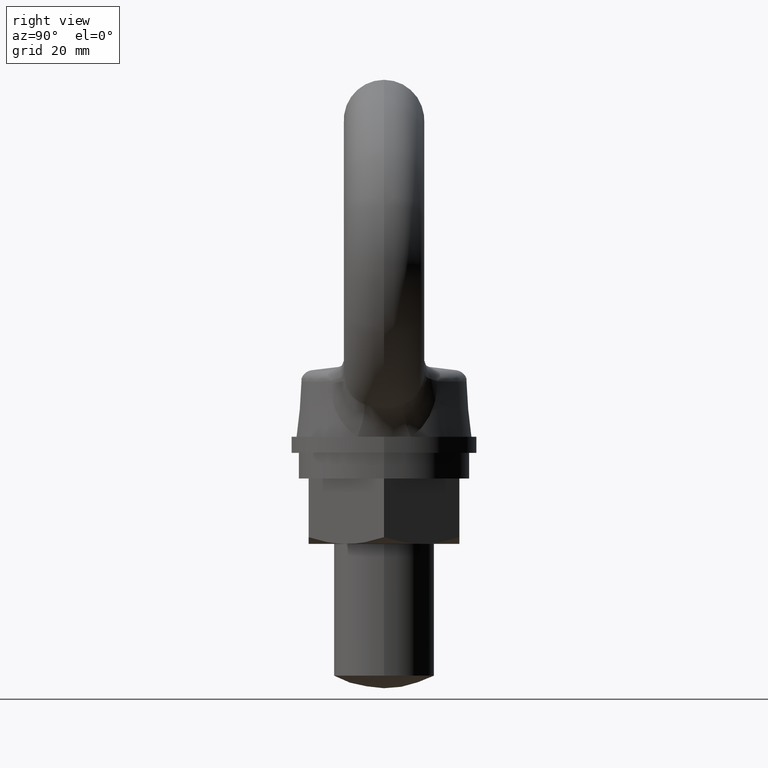
[diagram: clean part render]
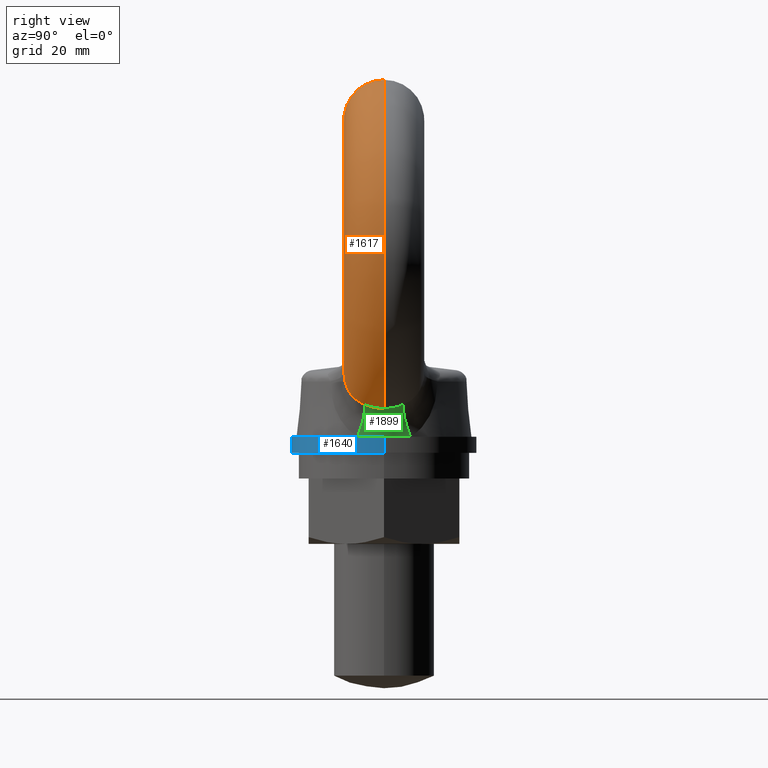
[diagram: same view with three faces highlighted in distinct colors, each labeled with its STEP entity id]
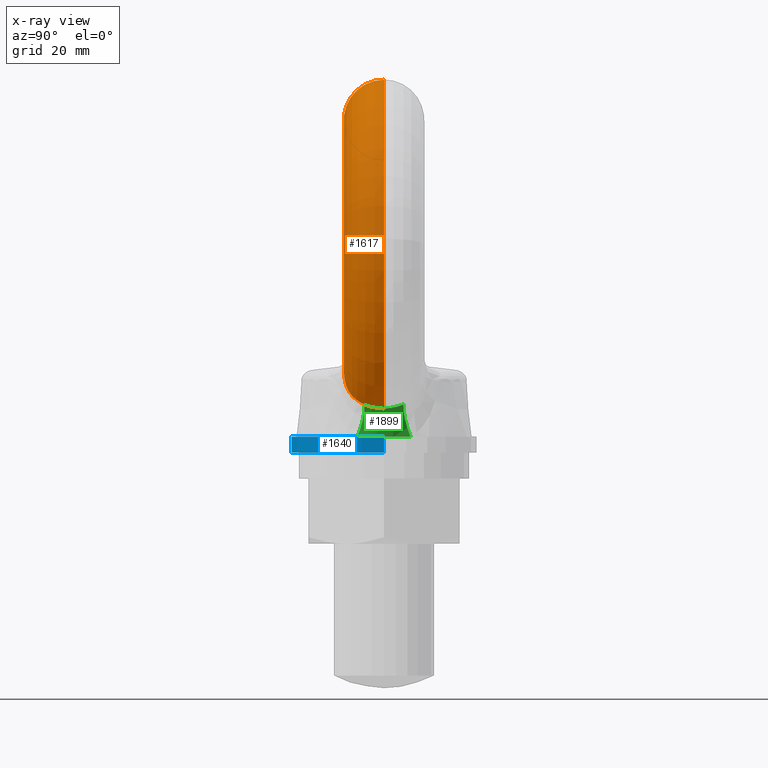
[diagram: x-ray of the same camera — body ghosted, the three highlighted faces saturated]
A machine part, right view with three faces highlighted in distinct colors.
The next image is the same camera in x-ray (body ghosted, the three faces saturated) — at least one of them is partly hidden behind the body in this view.
Their STEP definitions:

[orange] entity #1617 — the highlighted toroidal blend (fillet) surface has major radius 28 mm and minor (blend) radius 8 mm.
#1579 = VERTEX_POINT ( 'NONE', #2218 ) ;
#1581 = EDGE_CURVE ( 'NONE', #1579, #1582, #2209, .T. ) ;
#1582 = VERTEX_POINT ( 'NONE', #2194 ) ;
#1593 = EDGE_CURVE ( 'NONE', #1594, #1595, #2278, .T. ) ;
#1594 = VERTEX_POINT ( 'NONE', #2273 ) ;
#1595 = VERTEX_POINT ( 'NONE', #2272 ) ;
#1617 = ADVANCED_FACE ( 'NONE', ( #2461 ), #2460, .T. ) ;
#1618 = EDGE_LOOP ( 'NONE', ( #1619, #1933, #1734, #1735, #1737, #1738, #1741, #1744 ) ) ;
#1619 = ORIENTED_EDGE ( 'NONE', *, *, #1620, .T. ) ;
#1620 = EDGE_CURVE ( 'NONE', #1621, #3396, #2454, .T. ) ;
#1621 = VERTEX_POINT ( 'NONE', #2453 ) ;
#1734 = ORIENTED_EDGE ( 'NONE', *, *, #1593, .T. ) ;
#1735 = ORIENTED_EDGE ( 'NONE', *, *, #1736, .F. ) ;
#1736 = EDGE_CURVE ( 'NONE', #1582, #1595, #3379, .T. ) ;
#1737 = ORIENTED_EDGE ( 'NONE', *, *, #1581, .F. ) ;
#1738 = ORIENTED_EDGE ( 'NONE', *, *, #1739, .T. ) ;
#1739 = EDGE_CURVE ( 'NONE', #1579, #1740, #3340, .T. ) ;
#1740 = VERTEX_POINT ( 'NONE', #3339 ) ;
#1741 = ORIENTED_EDGE ( 'NONE', *, *, #1742, .T. ) ;
#1742 = EDGE_CURVE ( 'NONE', #1740, #1743, #3374, .T. ) ;
#1743 = VERTEX_POINT ( 'NONE', #3373 ) ;
#1744 = ORIENTED_EDGE ( 'NONE', *, *, #1745, .T. ) ;
#1745 = EDGE_CURVE ( 'NONE', #1743, #1621, #3362, .T. ) ;
#1933 = ORIENTED_EDGE ( 'NONE', *, *, #1934, .T. ) ;
#1934 = EDGE_CURVE ( 'NONE', #3396, #1594, #10475, .T. ) ;
#2194 = CARTESIAN_POINT ( 'NONE',  ( 0.0000000000000000000, 9.796850830579018100E-016, -20.00000000000000000 ) ) ;
#2195 = DIRECTION ( 'NONE',  ( 0.0000000000000000000, 0.0000000000000000000, 1.000000000000000000 ) ) ;
#2196 = DIRECTION ( 'NONE',  ( -1.000000000000000000, 0.0000000000000000000, 0.0000000000000000000 ) ) ;
#2197 = CARTESIAN_POINT ( 'NONE',  ( 0.0000000000000000000, 0.0000000000000000000, -28.00000000000000000 ) ) ;
#2198 = AXIS2_PLACEMENT_3D ( 'NONE', #2197, #2196, #2195 ) ;
#2209 = CIRCLE ( 'NONE', #2198, 8.000000000000000000 ) ;
#2218 = CARTESIAN_POINT ( 'NONE',  ( -6.801776097265342600E-013, -1.648912988659337200, -20.17177632180642600 ) ) ;
#2272 = CARTESIAN_POINT ( 'NONE',  ( 2.449212707644754900E-015, 0.0000000000000000000, 20.00000000000000000 ) ) ;
#2273 = CARTESIAN_POINT ( 'NONE',  ( 4.408582873760558900E-015, 0.0000000000000000000, 36.00000000000000700 ) ) ;
#2274 = DIRECTION ( 'NONE',  ( -1.224606353822377000E-016, 0.0000000000000000000, -1.000000000000000000 ) ) ;
#2275 = DIRECTION ( 'NONE',  ( 1.000000000000000000, 0.0000000000000000000, -1.224606353822377300E-016 ) ) ;
#2276 = CARTESIAN_POINT ( 'NONE',  ( 3.428897790702656300E-015, 0.0000000000000000000, 28.00000000000000000 ) ) ;
#2277 = AXIS2_PLACEMENT_3D ( 'NONE', #2276, #2275, #2274 ) ;
#2278 = CIRCLE ( 'NONE', #2277, 8.000000000000000000 ) ;
#2444 = CARTESIAN_POINT ( 'NONE',  ( 20.82274396233959700, 2.608593644003436100E-016, -29.36687477207695500 ) ) ;
#2445 = CARTESIAN_POINT ( 'NONE',  ( 20.82274396233959700, -0.3333399613064573800, -29.36687477207694700 ) ) ;
#2446 = CARTESIAN_POINT ( 'NONE',  ( 20.81241133440935100, -0.6667534197649370700, -29.34876368838754200 ) ) ;
#2447 = CARTESIAN_POINT ( 'NONE',  ( 20.76881765416469200, -1.333730597102416300, -29.27663618137728100 ) ) ;
#2448 = CARTESIAN_POINT ( 'NONE',  ( 20.73534077858353100, -1.666745450908854800, -29.22238999710291900 ) ) ;
#2449 = CARTESIAN_POINT ( 'NONE',  ( 20.59604896188286100, -2.638086811658063400, -29.01525777578670400 ) ) ;
#2450 = CARTESIAN_POINT ( 'NONE',  ( 20.45220719360045800, -3.258800377939267400, -28.81727177811009400 ) ) ;
#2451 = CARTESIAN_POINT ( 'NONE',  ( 20.22635143677745300, -3.850677136497409900, -28.57893508878730100 ) ) ;
#2453 = CARTESIAN_POINT ( 'NONE',  ( 20.22635143677745300, -3.850677136497409900, -28.57893508878730100 ) ) ;
#2454 = B_SPLINE_CURVE_WITH_KNOTS ( 'NONE', 3,
 ( #2451, #2450, #2449, #2448, #2447, #2446, #2445, #2444 ),
 .UNSPECIFIED., .F., .F.,
 ( 4, 2, 2, 4 ),
 ( 0.0000000000000000000, 0.002030565302483936600, 0.003045847953725904600, 0.004061130604967873100 ),
 .UNSPECIFIED. ) ;
#2456 = DIRECTION ( 'NONE',  ( 0.0000000000000000000, 0.0000000000000000000, -1.000000000000000000 ) ) ;
#2457 = DIRECTION ( 'NONE',  ( 0.0000000000000000000, -1.000000000000000000, 0.0000000000000000000 ) ) ;
#2458 = CARTESIAN_POINT ( 'NONE',  ( 0.0000000000000000000, 0.0000000000000000000, 0.0000000000000000000 ) ) ;
#2459 = AXIS2_PLACEMENT_3D ( 'NONE', #2458, #2457, #2456 ) ;
#2460 = TOROIDAL_SURFACE ( 'NONE', #2459, 28.00000000000000000, 8.000000000000000000 ) ;
#2461 = FACE_OUTER_BOUND ( 'NONE', #1618, .T. ) ;
#3297 = CARTESIAN_POINT ( 'NONE',  ( 20.22635143677745300, -3.850677136497409900, -28.57893508878730100 ) ) ;
#3298 = CARTESIAN_POINT ( 'NONE',  ( 20.11418828243314700, -4.144611482722655000, -28.46057372733064400 ) ) ;
#3299 = CARTESIAN_POINT ( 'NONE',  ( 19.99054849801882500, -4.431489786215264500, -28.32525873356544800 ) ) ;
#3300 = CARTESIAN_POINT ( 'NONE',  ( 19.73060673504888700, -4.977945136852569300, -28.02236145529681000 ) ) ;
#3301 = CARTESIAN_POINT ( 'NONE',  ( 19.59491152535036900, -5.236678138859785400, -27.85558941732401500 ) ) ;
#3302 = CARTESIAN_POINT ( 'NONE',  ( 19.31911577724116600, -5.725815264394614500, -27.48705929234961700 ) ) ;
#3303 = CARTESIAN_POINT ( 'NONE',  ( 19.17896405596060900, -5.956222591947858200, -27.28534354682487600 ) ) ;
#3304 = CARTESIAN_POINT ( 'NONE',  ( 18.90315984833434700, -6.387940149439712600, -26.83927494819517900 ) ) ;
#3305 = CARTESIAN_POINT ( 'NONE',  ( 18.76845463239103800, -6.587663616799292600, -26.59566776194105100 ) ) ;
#3306 = CARTESIAN_POINT ( 'NONE',  ( 18.52507872937812600, -6.943143772068275200, -26.07781253912318000 ) ) ;
#3307 = CARTESIAN_POINT ( 'NONE',  ( 18.41549302629718800, -7.100415413047163500, -25.80224963356007700 ) ) ;
#3308 = CARTESIAN_POINT ( 'NONE',  ( 18.23171049364464500, -7.375652238867384200, -25.21441134305341000 ) ) ;
#3309 = CARTESIAN_POINT ( 'NONE',  ( 18.15776407699707900, -7.493607341628532500, -24.90071778634209900 ) ) ;
#3310 = CARTESIAN_POINT ( 'NONE',  ( 18.00768359795330300, -7.783120605078417900, -23.93155989795791800 ) ) ;
#3311 = CARTESIAN_POINT ( 'NONE',  ( 18.00517298128527300, -7.888770549149456600, -23.26569416772943600 ) ) ;
#3312 = CARTESIAN_POINT ( 'NONE',  ( 18.07603648372269600, -7.945372300636390300, -22.59188056541010100 ) ) ;
#3317 = CARTESIAN_POINT ( 'NONE',  ( 18.07603648372269600, -7.945372300636390300, -22.59188056541010100 ) ) ;
#3318 = CARTESIAN_POINT ( 'NONE',  ( 18.11359865916540800, -7.975374838566204400, -22.23471638532502900 ) ) ;
#3319 = CARTESIAN_POINT ( 'NONE',  ( 18.12266108248948600, -7.994615146475911000, -21.87896926831054500 ) ) ;
#3320 = CARTESIAN_POINT ( 'NONE',  ( 18.07977859955468600, -8.003458689657117400, -21.17042362808047800 ) ) ;
#3325 = CARTESIAN_POINT ( 'NONE',  ( 11.02600949132121900, -5.094174966518601800, -18.85273109701070400 ) ) ;
#3326 = CARTESIAN_POINT ( 'NONE',  ( 8.876205591786297000, -4.343719679773356800, -19.35445521958899600 ) ) ;
#3327 = CARTESIAN_POINT ( 'NONE',  ( 7.795869597807890000, -3.964306393876514600, -19.57089191997829000 ) ) ;
#3328 = CARTESIAN_POINT ( 'NONE',  ( 6.160986674743906400, -3.396270694925605400, -19.82547916088814300 ) ) ;
#3329 = CARTESIAN_POINT ( 'NONE',  ( 5.613669142730709700, -3.207018685815063600, -19.89871213727468600 ) ) ;
#3330 = CARTESIAN_POINT ( 'NONE',  ( 4.513226142144901600, -2.830539485977724600, -20.01962005447588700 ) ) ;
#3331 = CARTESIAN_POINT ( 'NONE',  ( 3.959779719305933600, -2.642897372626524800, -20.06725052408935300 ) ) ;
#3332 = CARTESIAN_POINT ( 'NONE',  ( 2.849695746449018700, -2.277629489976728600, -20.13554003528868800 ) ) ;
#3333 = CARTESIAN_POINT ( 'NONE',  ( 2.293241105869358300, -2.097519597694808900, -20.15596734802053900 ) ) ;
#3334 = CARTESIAN_POINT ( 'NONE',  ( 1.446693863544343400, -1.863026362127270700, -20.16967938433177600 ) ) ;
#3339 = CARTESIAN_POINT ( 'NONE',  ( 13.16581114616844100, -5.822891640927260000, -18.26337593279295000 ) ) ;
#3340 = B_SPLINE_CURVE_WITH_KNOTS ( 'NONE', 3,
 ( #3372, #3371, #3370, #3369, #3334, #3333, #3332, #3331, #3330, #3329, #3328, #3327, #3326, #3325, #3365, #3364 ),
 .UNSPECIFIED., .F., .F.,
 ( 4, 2, 2, 2, 2, 2, 2, 4 ),
 ( 0.01400035937500931400, 0.01487766894906750200, 0.01575497852312569100, 0.01750959767124206700, 0.01926421681935843900, 0.02101883596747481500, 0.02452807426370756700, 0.02803731255994031800 ),
 .UNSPECIFIED. ) ;
#3341 = CARTESIAN_POINT ( 'NONE',  ( 18.02768932964249500, -7.993091859073878400, -20.81565670452086500 ) ) ;
#3342 = CARTESIAN_POINT ( 'NONE',  ( 17.84811499194986000, -7.929733466183030500, -20.11838136295900300 ) ) ;
#3343 = CARTESIAN_POINT ( 'NONE',  ( 17.72153517151665300, -7.876760325673066300, -19.78228716625922300 ) ) ;
#3344 = CARTESIAN_POINT ( 'NONE',  ( 17.47397872792898400, -7.761468932633102100, -19.32454664443908900 ) ) ;
#3345 = CARTESIAN_POINT ( 'NONE',  ( 17.38154244137070500, -7.716979344583874600, -19.17882500283558000 ) ) ;
#3346 = CARTESIAN_POINT ( 'NONE',  ( 17.17341124250268800, -7.614311512438220600, -18.90333602284564700 ) ) ;
#3347 = CARTESIAN_POINT ( 'NONE',  ( 17.05793256764714600, -7.556212195201190700, -18.77448645054599700 ) ) ;
#3348 = CARTESIAN_POINT ( 'NONE',  ( 16.81044838943325100, -7.430531357126373100, -18.54514945629764400 ) ) ;
#3349 = CARTESIAN_POINT ( 'NONE',  ( 16.67602498177859300, -7.361733699688927300, -18.44248405048898900 ) ) ;
#3350 = CARTESIAN_POINT ( 'NONE',  ( 16.39476057496582200, -7.218288425426477400, -18.26868347398500700 ) ) ;
#3351 = CARTESIAN_POINT ( 'NONE',  ( 16.24862167784842600, -7.144014841442248600, -18.19751398808079300 ) ) ;
#3352 = CARTESIAN_POINT ( 'NONE',  ( 15.94572938865950300, -6.992236243240994600, -18.08353575870140900 ) ) ;
#3353 = CARTESIAN_POINT ( 'NONE',  ( 15.78801399126977900, -6.914270677098368600, -18.04059165343121800 ) ) ;
#3354 = CARTESIAN_POINT ( 'NONE',  ( 15.46676393961531900, -6.759106830295486600, -17.98127042126008500 ) ) ;
#3355 = CARTESIAN_POINT ( 'NONE',  ( 15.30441603709838300, -6.682468531190187000, -17.96487839060626300 ) ) ;
#3356 = CARTESIAN_POINT ( 'NONE',  ( 14.81221330635343500, -6.456961513143172100, -17.94775066259624600 ) ) ;
#3357 = CARTESIAN_POINT ( 'NONE',  ( 14.48123799294935700, -6.314584864780775000, -17.97898440379199800 ) ) ;
#3358 = CARTESIAN_POINT ( 'NONE',  ( 13.82426550664458600, -6.053219655340295300, -18.08975020714982000 ) ) ;
#3359 = CARTESIAN_POINT ( 'NONE',  ( 13.49582032084218000, -5.933049164701370300, -18.16961843594631200 ) ) ;
#3360 = CARTESIAN_POINT ( 'NONE',  ( 13.16581114616844100, -5.822891640927260000, -18.26337593279295000 ) ) ;
#3362 = B_SPLINE_CURVE_WITH_KNOTS ( 'NONE', 3,
 ( #3312, #3311, #3310, #3309, #3308, #3307, #3306, #3305, #3304, #3303, #3302, #3301, #3300, #3299, #3298, #3297 ),
 .UNSPECIFIED., .F., .F.,
 ( 4, 2, 2, 2, 2, 2, 2, 4 ),
 ( 0.0000000000000000000, 0.002017604920524075900, 0.003026407380786114500, 0.004035209841048153500, 0.005044012301310191700, 0.006052814761572230700, 0.007061617221834270600, 0.008070419682096308800 ),
 .UNSPECIFIED. ) ;
#3364 = CARTESIAN_POINT ( 'NONE',  ( 13.16581114616844100, -5.822891640927260000, -18.26337593279295000 ) ) ;
#3365 = CARTESIAN_POINT ( 'NONE',  ( 12.09536415915232300, -5.465574940451491100, -18.56749605341954300 ) ) ;
#3369 = CARTESIAN_POINT ( 'NONE',  ( 1.161967417853971800, -1.791021747685690200, -20.17147424733031600 ) ) ;
#3370 = CARTESIAN_POINT ( 'NONE',  ( 0.5862053274139817900, -1.683173924994516100, -20.17241038105854800 ) ) ;
#3371 = CARTESIAN_POINT ( 'NONE',  ( 0.2934825933647549600, -1.648912988659291500, -20.17177632180642600 ) ) ;
#3372 = CARTESIAN_POINT ( 'NONE',  ( -6.801776097265342600E-013, -1.648912988659337200, -20.17177632180642600 ) ) ;
#3373 = CARTESIAN_POINT ( 'NONE',  ( 18.07603648372269600, -7.945372300636390300, -22.59188056541010100 ) ) ;
#3374 = B_SPLINE_CURVE_WITH_KNOTS ( 'NONE', 3,
 ( #3360, #3359, #3358, #3357, #3356, #3355, #3354, #3353, #3352, #3351, #3350, #3349, #3348, #3347, #3346, #3345, #3344, #3343, #3342, #3341, #3320, #3319, #3318, #3317 ),
 .UNSPECIFIED., .F., .F.,
 ( 4, 2, 2, 2, 2, 2, 2, 2, 2, 2, 2, 4 ),
 ( 0.0000000000000000000, 0.001073500678988849500, 0.002147001357977699100, 0.002683751697472123700, 0.003220502036966553200, 0.003757252376460982600, 0.004294002715955412000, 0.004830753055449841900, 0.005367503394944271800, 0.006441004073933138400, 0.007514504752922006800, 0.008588005431910874400 ),
 .UNSPECIFIED. ) ;
#3379 = CIRCLE ( 'NONE', #3383, 20.00000000000000000 ) ;
#3380 = DIRECTION ( 'NONE',  ( 0.0000000000000000000, 0.0000000000000000000, -1.000000000000000000 ) ) ;
#3381 = DIRECTION ( 'NONE',  ( 0.0000000000000000000, -1.000000000000000000, 0.0000000000000000000 ) ) ;
#3382 = CARTESIAN_POINT ( 'NONE',  ( 0.0000000000000000000, 9.796850830579018100E-016, 0.0000000000000000000 ) ) ;
#3383 = AXIS2_PLACEMENT_3D ( 'NONE', #3382, #3381, #3380 ) ;
#3396 = VERTEX_POINT ( 'NONE', #10752 ) ;
#10472 = DIRECTION ( 'NONE',  ( 0.0000000000000000000, -1.000000000000000000, 0.0000000000000000000 ) ) ;
#10473 = CARTESIAN_POINT ( 'NONE',  ( 0.0000000000000000000, 0.0000000000000000000, 0.0000000000000000000 ) ) ;
#10474 = AXIS2_PLACEMENT_3D ( 'NONE', #10473, #10472, #10604 ) ;
#10475 = CIRCLE ( 'NONE', #10474, 36.00000000000000700 ) ;
#10604 = DIRECTION ( 'NONE',  ( 0.0000000000000000000, 0.0000000000000000000, -1.000000000000000000 ) ) ;
#10752 = CARTESIAN_POINT ( 'NONE',  ( 20.82274396233959700, 2.608593644003436100E-016, -29.36687477207695500 ) ) ;

[blue] entity #1640 — the highlighted cylindrical surface (partial cylindrical patch) has radius 18.5 mm, axis along (0, 0, -1).
#1622 = VERTEX_POINT ( 'NONE', #2455 ) ;
#1623 = VERTEX_POINT ( 'NONE', #2452 ) ;
#1625 = EDGE_CURVE ( 'NONE', #1623, #1626, #2443, .T. ) ;
#1626 = VERTEX_POINT ( 'NONE', #2439 ) ;
#1629 = VERTEX_POINT ( 'NONE', #2433 ) ;
#1631 = EDGE_CURVE ( 'NONE', #1622, #1629, #2432, .T. ) ;
#1640 = ADVANCED_FACE ( 'NONE', ( #2411 ), #2410, .T. ) ;
#1641 = EDGE_LOOP ( 'NONE', ( #1642, #1643, #1645, #1646 ) ) ;
#1642 = ORIENTED_EDGE ( 'NONE', *, *, #1625, .F. ) ;
#1643 = ORIENTED_EDGE ( 'NONE', *, *, #1644, .T. ) ;
#1644 = EDGE_CURVE ( 'NONE', #1623, #1622, #2409, .T. ) ;
#1645 = ORIENTED_EDGE ( 'NONE', *, *, #1631, .T. ) ;
#1646 = ORIENTED_EDGE ( 'NONE', *, *, #1647, .F. ) ;
#1647 = EDGE_CURVE ( 'NONE', #1626, #1629, #2400, .T. ) ;
#2396 = DIRECTION ( 'NONE',  ( 1.000000000000000000, 0.0000000000000000000, 0.0000000000000000000 ) ) ;
#2397 = DIRECTION ( 'NONE',  ( 0.0000000000000000000, 0.0000000000000000000, -1.000000000000000000 ) ) ;
#2398 = CARTESIAN_POINT ( 'NONE',  ( 0.0000000000000000000, 0.0000000000000000000, -38.20000100000019900 ) ) ;
#2399 = AXIS2_PLACEMENT_3D ( 'NONE', #2398, #2397, #2396 ) ;
#2400 = CIRCLE ( 'NONE', #2399, 18.50000000000000000 ) ;
#2401 = DIRECTION ( 'NONE',  ( 1.000000000000000000, 0.0000000000000000000, 0.0000000000000000000 ) ) ;
#2402 = DIRECTION ( 'NONE',  ( 0.0000000000000000000, 0.0000000000000000000, -1.000000000000000000 ) ) ;
#2403 = CARTESIAN_POINT ( 'NONE',  ( 0.0000000000000000000, 0.0000000000000000000, -35.00000000000000000 ) ) ;
#2404 = AXIS2_PLACEMENT_3D ( 'NONE', #2403, #2402, #2401 ) ;
#2405 = DIRECTION ( 'NONE',  ( -1.000000000000000000, 0.0000000000000000000, 0.0000000000000000000 ) ) ;
#2406 = DIRECTION ( 'NONE',  ( 0.0000000000000000000, 0.0000000000000000000, -1.000000000000000000 ) ) ;
#2407 = CARTESIAN_POINT ( 'NONE',  ( 0.0000000000000000000, 0.0000000000000000000, 961.7999990000000700 ) ) ;
#2408 = AXIS2_PLACEMENT_3D ( 'NONE', #2407, #2406, #2405 ) ;
#2409 = CIRCLE ( 'NONE', #2404, 18.50000000000000000 ) ;
#2410 = CYLINDRICAL_SURFACE ( 'NONE', #2408, 18.50000000000000000 ) ;
#2411 = FACE_OUTER_BOUND ( 'NONE', #1641, .T. ) ;
#2429 = DIRECTION ( 'NONE',  ( 0.0000000000000000000, 0.0000000000000000000, -1.000000000000000000 ) ) ;
#2430 = VECTOR ( 'NONE', #2429, 1000.000000000000000 ) ;
#2431 = CARTESIAN_POINT ( 'NONE',  ( -18.50000000000000000, 0.0000000000000000000, 961.7999990000000700 ) ) ;
#2432 = LINE ( 'NONE', #2431, #2430 ) ;
#2433 = CARTESIAN_POINT ( 'NONE',  ( -18.50000000000000000, 0.0000000000000000000, -38.20000100000019900 ) ) ;
#2439 = CARTESIAN_POINT ( 'NONE',  ( 18.50000000000000000, 2.265521754571397900E-015, -38.20000100000019900 ) ) ;
#2440 = DIRECTION ( 'NONE',  ( 0.0000000000000000000, 0.0000000000000000000, -1.000000000000000000 ) ) ;
#2441 = VECTOR ( 'NONE', #2440, 1000.000000000000000 ) ;
#2442 = CARTESIAN_POINT ( 'NONE',  ( 18.50000000000000000, 2.265521754571397900E-015, 961.7999990000000700 ) ) ;
#2443 = LINE ( 'NONE', #2442, #2441 ) ;
#2452 = CARTESIAN_POINT ( 'NONE',  ( 18.50000000000000000, 2.265521754571397900E-015, -35.00000000000000000 ) ) ;
#2455 = CARTESIAN_POINT ( 'NONE',  ( -18.50000000000000000, 0.0000000000000000000, -35.00000000000000000 ) ) ;

[green] entity #1899 — the highlighted face is a freeform B-spline surface patch.
#1620 = EDGE_CURVE ( 'NONE', #1621, #3396, #2454, .T. ) ;
#1621 = VERTEX_POINT ( 'NONE', #2453 ) ;
#1889 = EDGE_CURVE ( 'NONE', #1621, #1937, #5764, .T. ) ;
#1899 = ADVANCED_FACE ( 'NONE', ( #7382 ), #7529, .F. ) ;
#1900 = EDGE_LOOP ( 'NONE', ( #1901, #1902, #1903, #1905, #1906 ) ) ;
#1901 = ORIENTED_EDGE ( 'NONE', *, *, #1889, .T. ) ;
#1902 = ORIENTED_EDGE ( 'NONE', *, *, #1936, .F. ) ;
#1903 = ORIENTED_EDGE ( 'NONE', *, *, #1904, .F. ) ;
#1904 = EDGE_CURVE ( 'NONE', #1974, #1998, #8020, .T. ) ;
#1905 = ORIENTED_EDGE ( 'NONE', *, *, #1973, .F. ) ;
#1906 = ORIENTED_EDGE ( 'NONE', *, *, #1620, .F. ) ;
#1936 = EDGE_CURVE ( 'NONE', #1998, #1937, #10602, .T. ) ;
#1937 = VERTEX_POINT ( 'NONE', #10603 ) ;
#1973 = EDGE_CURVE ( 'NONE', #3396, #1974, #10468, .T. ) ;
#1974 = VERTEX_POINT ( 'NONE', #10467 ) ;
#1998 = VERTEX_POINT ( 'NONE', #10442 ) ;
#2444 = CARTESIAN_POINT ( 'NONE',  ( 20.82274396233959700, 2.608593644003436100E-016, -29.36687477207695500 ) ) ;
#2445 = CARTESIAN_POINT ( 'NONE',  ( 20.82274396233959700, -0.3333399613064573800, -29.36687477207694700 ) ) ;
#2446 = CARTESIAN_POINT ( 'NONE',  ( 20.81241133440935100, -0.6667534197649370700, -29.34876368838754200 ) ) ;
#2447 = CARTESIAN_POINT ( 'NONE',  ( 20.76881765416469200, -1.333730597102416300, -29.27663618137728100 ) ) ;
#2448 = CARTESIAN_POINT ( 'NONE',  ( 20.73534077858353100, -1.666745450908854800, -29.22238999710291900 ) ) ;
#2449 = CARTESIAN_POINT ( 'NONE',  ( 20.59604896188286100, -2.638086811658063400, -29.01525777578670400 ) ) ;
#2450 = CARTESIAN_POINT ( 'NONE',  ( 20.45220719360045800, -3.258800377939267400, -28.81727177811009400 ) ) ;
#2451 = CARTESIAN_POINT ( 'NONE',  ( 20.22635143677745300, -3.850677136497409900, -28.57893508878730100 ) ) ;
#2453 = CARTESIAN_POINT ( 'NONE',  ( 20.22635143677745300, -3.850677136497409900, -28.57893508878730100 ) ) ;
#2454 = B_SPLINE_CURVE_WITH_KNOTS ( 'NONE', 3,
 ( #2451, #2450, #2449, #2448, #2447, #2446, #2445, #2444 ),
 .UNSPECIFIED., .F., .F.,
 ( 4, 2, 2, 4 ),
 ( 0.0000000000000000000, 0.002030565302483936600, 0.003045847953725904600, 0.004061130604967873100 ),
 .UNSPECIFIED. ) ;
#3396 = VERTEX_POINT ( 'NONE', #10752 ) ;
#5760 = DIRECTION ( 'NONE',  ( 0.0000000000000000000, -0.3879327672966316200, -0.9216876738123265200 ) ) ;
#5761 = DIRECTION ( 'NONE',  ( -0.3116533288331110300, -0.8757838265485250500, 0.3686121156219145400 ) ) ;
#5762 = CARTESIAN_POINT ( 'NONE',  ( 24.27730405642624900, -7.701354272994819900, -34.30275098937470100 ) ) ;
#5763 = AXIS2_PLACEMENT_3D ( 'NONE', #5762, #5761, #5760 ) ;
#5764 = CIRCLE ( 'NONE', #5763, 7.999999999999998200 ) ;
#5995 = CARTESIAN_POINT ( 'NONE',  ( 17.21511954706937800, 3.176758239582885100, -35.00000000000000000 ) ) ;
#5996 = CARTESIAN_POINT ( 'NONE',  ( 20.58303127989018900, 2.630929509595513400, -29.00036367380175800 ) ) ;
#5997 = CARTESIAN_POINT ( 'NONE',  ( 17.63634110865238100, 3.072219040736290400, -32.71077645531077800 ) ) ;
#5998 = CARTESIAN_POINT ( 'NONE',  ( 17.46067516251939000, 3.194591792460570500, -33.27459422337568600 ) ) ;
#5999 = CARTESIAN_POINT ( 'NONE',  ( 18.40686491335647200, 1.837150999714447300, -31.75278739759242800 ) ) ;
#6000 = CARTESIAN_POINT ( 'NONE',  ( 18.11611218988162600, 1.890647011991768400, -32.25000311969994000 ) ) ;
#6001 = CARTESIAN_POINT ( 'NONE',  ( 17.87933265696971900, 1.955867346980632700, -32.77750682563453200 ) ) ;
#6002 = CARTESIAN_POINT ( 'NONE',  ( 17.70205757092949700, 2.031290002719633700, -33.32297619752468900 ) ) ;
#6003 = CARTESIAN_POINT ( 'NONE',  ( 17.52478248488927500, 2.106712658458635100, -33.86844556941484500 ) ) ;
#6004 = CARTESIAN_POINT ( 'NONE',  ( 17.40702489711211200, 2.192332093971060700, -34.43184045273012100 ) ) ;
#6005 = CARTESIAN_POINT ( 'NONE',  ( 17.35153589542860100, 2.286150306661062900, -35.00000000000000000 ) ) ;
#6020 = CARTESIAN_POINT ( 'NONE',  ( 18.17403216932003900, 2.882947821245326100, -31.64581859618085200 ) ) ;
#6021 = CARTESIAN_POINT ( 'NONE',  ( 17.87615350660303200, 2.967456242835333000, -32.16322573575089200 ) ) ;
#6022 = CARTESIAN_POINT ( 'NONE',  ( 19.76912104998569200, 2.010260373623510100, -29.88165570255223400 ) ) ;
#6023 = CARTESIAN_POINT ( 'NONE',  ( 19.37411114986756600, 2.044126017999190900, -30.31293083359731000 ) ) ;
#6024 = CARTESIAN_POINT ( 'NONE',  ( 18.97910124974943700, 2.077991662374871800, -30.74420596464238600 ) ) ;
#6025 = CARTESIAN_POINT ( 'NONE',  ( 18.63093827868901500, 2.127486772047841400, -31.21713063050523800 ) ) ;
#6026 = CARTESIAN_POINT ( 'NONE',  ( 18.33796292918424000, 2.191425627903064800, -31.72037531156281200 ) ) ;
#6052 = CARTESIAN_POINT ( 'NONE',  ( 20.09162889060688400, 2.628995006564458100, -29.34971309580989300 ) ) ;
#6053 = CARTESIAN_POINT ( 'NONE',  ( 19.63770651276873700, 2.649468595442448400, -29.75182427816310600 ) ) ;
#6054 = CARTESIAN_POINT ( 'NONE',  ( 19.23276822704919600, 2.691830607331212800, -30.19650849577551500 ) ) ;
#6055 = CARTESIAN_POINT ( 'NONE',  ( 20.71222661008765400, 1.827862658324659800, -29.18802152164365900 ) ) ;
#6056 = CARTESIAN_POINT ( 'NONE',  ( 20.23724930330420000, 1.830737099591455800, -29.52422588733455200 ) ) ;
#6057 = CARTESIAN_POINT ( 'NONE',  ( 19.79821426077501600, 1.848158374399280700, -29.91104282707894800 ) ) ;
#6058 = CARTESIAN_POINT ( 'NONE',  ( 19.40549985346930500, 1.879714881520909000, -30.33932845583536400 ) ) ;
#6059 = CARTESIAN_POINT ( 'NONE',  ( 19.01278544616359800, 1.911271388642537400, -30.76761408459178100 ) ) ;
#6090 = CARTESIAN_POINT ( 'NONE',  ( 20.15834324547709100, 2.314606253550620400, -29.42773875637637100 ) ) ;
#6091 = CARTESIAN_POINT ( 'NONE',  ( 19.71093462840704900, 2.334464372071971500, -29.82288145349880900 ) ) ;
#6092 = CARTESIAN_POINT ( 'NONE',  ( 19.31133374266408300, 2.372948290955757300, -30.26013558912120900 ) ) ;
#6093 = CARTESIAN_POINT ( 'NONE',  ( 18.91173285692112000, 2.411432209839543500, -30.69738972474360500 ) ) ;
#6105 = CARTESIAN_POINT ( 'NONE',  ( 17.55427874206927500, 2.815268492498940800, -33.29270766730122200 ) ) ;
#6106 = CARTESIAN_POINT ( 'NONE',  ( 17.37789614377273800, 2.921790742610224100, -33.84956870798725200 ) ) ;
#6107 = CARTESIAN_POINT ( 'NONE',  ( 17.26390847297059500, 3.043279212294691200, -34.42336765357266900 ) ) ;
#6157 = CARTESIAN_POINT ( 'NONE',  ( 20.76520979209579900, 1.332521290438841500, -29.27122182763469700 ) ) ;
#6158 = CARTESIAN_POINT ( 'NONE',  ( 20.29796546666042500, 1.336016098909652600, -29.60196509685757200 ) ) ;
#6159 = CARTESIAN_POINT ( 'NONE',  ( 19.86593068696393200, 1.349782000475141500, -29.98230579283085700 ) ) ;
#6160 = CARTESIAN_POINT ( 'NONE',  ( 19.47899227593177300, 1.373504042983879400, -30.40354007757594700 ) ) ;
#6161 = CARTESIAN_POINT ( 'NONE',  ( 19.09205386489961900, 1.397226085492617500, -30.82477436232103300 ) ) ;
#6162 = CARTESIAN_POINT ( 'NONE',  ( 18.75023915499920700, 1.430902594119265900, -31.28687248083171500 ) ) ;
#6163 = CARTESIAN_POINT ( 'NONE',  ( 18.46137035764051900, 1.473763106807326700, -31.77925963002283500 ) ) ;
#6164 = CARTESIAN_POINT ( 'NONE',  ( 18.17250156028183000, 1.516623619495387700, -32.27164677921396000 ) ) ;
#6165 = CARTESIAN_POINT ( 'NONE',  ( 20.50722059829601200, 2.941107119086447500, -28.90380296016979500 ) ) ;
#6166 = CARTESIAN_POINT ( 'NONE',  ( 18.66642128133523900, 1.956960753348825400, -31.23733611434219200 ) ) ;
#6167 = CARTESIAN_POINT ( 'NONE',  ( 18.37459520562692800, 2.015704030636339200, -31.73739083111793500 ) ) ;
#6168 = CARTESIAN_POINT ( 'NONE',  ( 18.08276912991862100, 2.074447307923852800, -32.23744554789367800 ) ) ;
#6169 = CARTESIAN_POINT ( 'NONE',  ( 17.84550314562196100, 2.146240079010814000, -32.76779525246190900 ) ) ;
#6170 = CARTESIAN_POINT ( 'NONE',  ( 17.66840631320454900, 2.229387162951720100, -33.31590292036843000 ) ) ;
#6171 = CARTESIAN_POINT ( 'NONE',  ( 17.49130948078714100, 2.312534246892625800, -33.86401058827495100 ) ) ;
#6172 = CARTESIAN_POINT ( 'NONE',  ( 20.73215500259259900, 1.664125490838982600, -29.21880600716007900 ) ) ;
#6173 = CARTESIAN_POINT ( 'NONE',  ( 20.26000517465150700, 1.667398101494501800, -29.55296227198471500 ) ) ;
#6174 = CARTESIAN_POINT ( 'NONE',  ( 19.82353029263404700, 1.683757717379176200, -29.93736017020373600 ) ) ;
#6175 = CARTESIAN_POINT ( 'NONE',  ( 19.43292621971482600, 1.712822472800367600, -30.36302035460972000 ) ) ;
#6176 = CARTESIAN_POINT ( 'NONE',  ( 19.04232214679560500, 1.741887228221558900, -30.78868053901570400 ) ) ;
#6177 = CARTESIAN_POINT ( 'NONE',  ( 18.69761763683131800, 1.783654987437126400, -31.25557167548491200 ) ) ;
#6178 = CARTESIAN_POINT ( 'NONE',  ( 17.17350496424295500, 3.456936741408761700, -34.41844795790736100 ) ) ;
#6179 = CARTESIAN_POINT ( 'NONE',  ( 17.12899254309111200, 3.610976402028972700, -35.00000000000000000 ) ) ;
#6190 = CARTESIAN_POINT ( 'NONE',  ( 17.28500921638639600, 3.316964544184850100, -33.83841199144058700 ) ) ;
#6191 = CARTESIAN_POINT ( 'NONE',  ( 17.44934455812332500, 1.866278978633418200, -34.43451351314000400 ) ) ;
#6192 = CARTESIAN_POINT ( 'NONE',  ( 17.39189120425983100, 1.945556637041969900, -35.00000000000000000 ) ) ;
#6193 = CARTESIAN_POINT ( 'NONE',  ( 20.74905652146141900, 1.498613958990542100, -29.24551522631319100 ) ) ;
#6194 = CARTESIAN_POINT ( 'NONE',  ( 20.27940031886721100, 1.502029550128043800, -29.57792743460359800 ) ) ;
#6195 = CARTESIAN_POINT ( 'NONE',  ( 19.84518259015752100, 1.517118931955603300, -29.96025384703407800 ) ) ;
#6196 = CARTESIAN_POINT ( 'NONE',  ( 19.45644161187479800, 1.543533267063725600, -30.38365581422734300 ) ) ;
#6197 = CARTESIAN_POINT ( 'NONE',  ( 19.06770063359207900, 1.569947602171847900, -30.80705778142061000 ) ) ;
#6210 = CARTESIAN_POINT ( 'NONE',  ( 18.55997227339656800, 2.468538809445876200, -31.17671966283133100 ) ) ;
#6211 = CARTESIAN_POINT ( 'NONE',  ( 18.26469837629885600, 2.542868822436519200, -31.68634427245256500 ) ) ;
#6212 = CARTESIAN_POINT ( 'NONE',  ( 17.96942447920114500, 2.617198835427162300, -32.19596888207379900 ) ) ;
#6213 = CARTESIAN_POINT ( 'NONE',  ( 17.73066134036581700, 2.708746242387658000, -32.73584662661518500 ) ) ;
#6214 = CARTESIAN_POINT ( 'NONE',  ( 18.82782994132965400, 2.734192619219977200, -30.64119271338792300 ) ) ;
#6215 = CARTESIAN_POINT ( 'NONE',  ( 18.47191083203704700, 2.798439399655319200, -31.12841145661081300 ) ) ;
#6216 = CARTESIAN_POINT ( 'NONE',  ( 18.04498757967946400, 2.255364483758288200, -32.22361999262038500 ) ) ;
#6217 = CARTESIAN_POINT ( 'NONE',  ( 17.80722254386991600, 2.333742133469761000, -32.75714571051300100 ) ) ;
#6218 = CARTESIAN_POINT ( 'NONE',  ( 17.63036378949279400, 2.424680939467459300, -33.30817116934602500 ) ) ;
#6219 = CARTESIAN_POINT ( 'NONE',  ( 17.45350503511567200, 2.515619745465157700, -33.85919662817904900 ) ) ;
#6220 = CARTESIAN_POINT ( 'NONE',  ( 19.85600873891925700, 1.433799539243815900, -29.97170068544924600 ) ) ;
#6221 = CARTESIAN_POINT ( 'NONE',  ( 19.46819930795478400, 1.458888664195403500, -30.39397354403615400 ) ) ;
#6222 = CARTESIAN_POINT ( 'NONE',  ( 19.08038987699031400, 1.483977789146991200, -30.81624640262306200 ) ) ;
#6223 = CARTESIAN_POINT ( 'NONE',  ( 18.73788783140923200, 1.519699985487752000, -31.27947132761576300 ) ) ;
#6224 = CARTESIAN_POINT ( 'NONE',  ( 18.44856949802842600, 1.565234005267204200, -31.77299582388241800 ) ) ;
#6225 = CARTESIAN_POINT ( 'NONE',  ( 18.15925116464762100, 1.610768025046656500, -32.26652032014907700 ) ) ;
#6226 = CARTESIAN_POINT ( 'NONE',  ( 17.92313718208561100, 1.666110622044227200, -32.79030918227321900 ) ) ;
#6227 = CARTESIAN_POINT ( 'NONE',  ( 17.74565736524042600, 1.729989498933643500, -33.33231714655094200 ) ) ;
#6228 = CARTESIAN_POINT ( 'NONE',  ( 17.56817754839524100, 1.793868375823059600, -33.87432511082867100 ) ) ;
#6229 = CARTESIAN_POINT ( 'NONE',  ( 17.33756626060516100, 2.619112664166460800, -34.42767914877605800 ) ) ;
#6230 = CARTESIAN_POINT ( 'NONE',  ( 17.28532492866452600, 2.732680389377574400, -35.00000000000000000 ) ) ;
#6231 = CARTESIAN_POINT ( 'NONE',  ( 20.64256278593532200, 2.313861157911432500, -29.08441927625759900 ) ) ;
#6233 = CARTESIAN_POINT ( 'NONE',  ( 18.72446443321658900, 1.607684986137544400, -31.27150477690548400 ) ) ;
#6234 = CARTESIAN_POINT ( 'NONE',  ( 18.43466796980444000, 1.655873003416286100, -31.76625968178575800 ) ) ;
#6235 = CARTESIAN_POINT ( 'NONE',  ( 18.14487150639228800, 1.704061020695028000, -32.26101458666603600 ) ) ;
#6236 = CARTESIAN_POINT ( 'NONE',  ( 17.90853567371364700, 1.762696197023029900, -32.78604173006032600 ) ) ;
#6237 = CARTESIAN_POINT ( 'NONE',  ( 17.73112410047011500, 1.830423000195641200, -33.32920349687552900 ) ) ;
#6238 = CARTESIAN_POINT ( 'NONE',  ( 17.55371252722658300, 1.898149803368252500, -33.87236526369073200 ) ) ;
#6239 = CARTESIAN_POINT ( 'NONE',  ( 17.43523800445292000, 1.974963350412633600, -34.43362249300337700 ) ) ;
#6240 = CARTESIAN_POINT ( 'NONE',  ( 17.37843943464941900, 2.059087860248335600, -35.00000000000000000 ) ) ;
#6241 = CARTESIAN_POINT ( 'NONE',  ( 17.37439515442244400, 2.407029390102347400, -34.42983489637774900 ) ) ;
#6242 = CARTESIAN_POINT ( 'NONE',  ( 17.32042761946209800, 2.510641464274920900, -35.00000000000000000 ) ) ;
#6243 = CARTESIAN_POINT ( 'NONE',  ( 20.68900533537021100, 1.989862158186916500, -29.15348743984830500 ) ) ;
#6244 = CARTESIAN_POINT ( 'NONE',  ( 20.21094728402849900, 1.992026817577843100, -29.49206351034849000 ) ) ;
#6251 = CARTESIAN_POINT ( 'NONE',  ( 17.93659908062794600, 1.568665110300891300, -32.79428817796566900 ) ) ;
#6252 = CARTESIAN_POINT ( 'NONE',  ( 17.75906142060907200, 1.628696967948540800, -33.33522351978913900 ) ) ;
#6253 = CARTESIAN_POINT ( 'NONE',  ( 17.58152376059019800, 1.688728825596190100, -33.87615886161260900 ) ) ;
#6254 = CARTESIAN_POINT ( 'NONE',  ( 17.46236346133250100, 1.756746811897186700, -34.43534993595420000 ) ) ;
#6255 = CARTESIAN_POINT ( 'NONE',  ( 17.40430748259262100, 1.831194809479895100, -35.00000000000000000 ) ) ;
#6256 = CARTESIAN_POINT ( 'NONE',  ( 20.75750728089583300, 1.415858193066320500, -29.25886983588974700 ) ) ;
#6257 = CARTESIAN_POINT ( 'NONE',  ( 20.28909789097506400, 1.419345274444813400, -29.59041001591304400 ) ) ;
#7382 = FACE_OUTER_BOUND ( 'NONE', #1900, .T. ) ;
#7426 = CARTESIAN_POINT ( 'NONE',  ( 20.00836502817808000, 2.934946354162551800, -29.26072673746884300 ) ) ;
#7427 = CARTESIAN_POINT ( 'NONE',  ( 19.54766635072918700, 2.954838107711652600, -29.67138121776076800 ) ) ;
#7428 = CARTESIAN_POINT ( 'NONE',  ( 19.13721767900808500, 3.000260231014030900, -30.12498692347956100 ) ) ;
#7429 = CARTESIAN_POINT ( 'NONE',  ( 18.72676900728698300, 3.045682354316409800, -30.57859262919835100 ) ) ;
#7430 = CARTESIAN_POINT ( 'NONE',  ( 18.36660855438523000, 3.116630618536949000, -31.07510732929890600 ) ) ;
#7431 = CARTESIAN_POINT ( 'NONE',  ( 18.06619035455435500, 3.211242666732729400, -31.60149775779293800 ) ) ;
#7432 = CARTESIAN_POINT ( 'NONE',  ( 17.76577215472347500, 3.305854714928509800, -32.12788818628697400 ) ) ;
#7433 = CARTESIAN_POINT ( 'NONE',  ( 17.52512417713224800, 3.424121738644028100, -32.68410533581489800 ) ) ;
#7434 = CARTESIAN_POINT ( 'NONE',  ( 17.35056331250084900, 3.562939286838026300, -33.25554878053721100 ) ) ;
#7435 = CARTESIAN_POINT ( 'NONE',  ( 17.17600244786945400, 3.701756835032024000, -33.82699222525952400 ) ) ;
#7436 = CARTESIAN_POINT ( 'NONE',  ( 17.06754494795056200, 3.861111983682460600, -34.41360876334568500 ) ) ;
#7437 = CARTESIAN_POINT ( 'NONE',  ( 17.02803776862400300, 4.036821738733883600, -35.00000000000000000 ) ) ;
#7438 = CARTESIAN_POINT ( 'NONE',  ( 20.43140991670183800, 3.251284728577378900, -28.80724224653782900 ) ) ;
#7439 = CARTESIAN_POINT ( 'NONE',  ( 19.92510116574927200, 3.240897701760642800, -29.17174037912779400 ) ) ;
#7440 = CARTESIAN_POINT ( 'NONE',  ( 19.45762618868963400, 3.260207619980854500, -29.59093815735843000 ) ) ;
#7441 = CARTESIAN_POINT ( 'NONE',  ( 19.04166713096697100, 3.308689854696847300, -30.05346535118360400 ) ) ;
#7459 = CARTESIAN_POINT ( 'NONE',  ( 18.62570807324430800, 3.357172089412839600, -30.51599254500877800 ) ) ;
#7460 = CARTESIAN_POINT ( 'NONE',  ( 18.26130627673341400, 3.434821837418576600, -31.02180320198699800 ) ) ;
#7461 = CARTESIAN_POINT ( 'NONE',  ( 17.95834853978866600, 3.539537512220130000, -31.55717691940502300 ) ) ;
#7462 = CARTESIAN_POINT ( 'NONE',  ( 17.65539080284391800, 3.644253187021683900, -32.09255063682304900 ) ) ;
#7463 = CARTESIAN_POINT ( 'NONE',  ( 17.41390724561211900, 3.776024436551762800, -32.65743421631902500 ) ) ;
#7464 = CARTESIAN_POINT ( 'NONE',  ( 17.24045146248231600, 3.931286781215479500, -33.23650333769874300 ) ) ;
#7465 = CARTESIAN_POINT ( 'NONE',  ( 17.06699567935251200, 4.086549125879195700, -33.81557245907846700 ) ) ;
#7466 = CARTESIAN_POINT ( 'NONE',  ( 16.96158493165816900, 4.265287225956154900, -34.40876956878400300 ) ) ;
#7467 = CARTESIAN_POINT ( 'NONE',  ( 16.92708299415689400, 4.462667075438790900, -35.00000000000000000 ) ) ;
#7468 = CARTESIAN_POINT ( 'NONE',  ( 20.33934227391584700, 3.554573767812460700, -28.69816987131480300 ) ) ;
#7469 = CARTESIAN_POINT ( 'NONE',  ( 19.82530767344924500, 3.538412638761599300, -29.07178691219392500 ) ) ;
#7470 = CARTESIAN_POINT ( 'NONE',  ( 19.35079160772965400, 3.555941904893809000, -29.50110301635508100 ) ) ;
#7471 = CARTESIAN_POINT ( 'NONE',  ( 18.92914754541291700, 3.606664664101042900, -29.97404351469121100 ) ) ;
#7472 = CARTESIAN_POINT ( 'NONE',  ( 18.50750348309618000, 3.657387423308277700, -30.44698401302734300 ) ) ;
#7507 = CARTESIAN_POINT ( 'NONE',  ( 18.13877651423426900, 3.741298259291739600, -30.96349838558616300 ) ) ;
#7508 = CARTESIAN_POINT ( 'NONE',  ( 17.83334441924559900, 3.856041247482900700, -31.50905689717696500 ) ) ;
#7509 = CARTESIAN_POINT ( 'NONE',  ( 17.52791232425692800, 3.970784235674062600, -32.05461540876776600 ) ) ;
#7510 = CARTESIAN_POINT ( 'NONE',  ( 17.28580778139530900, 4.116347184305145600, -32.62915975837000100 ) ) ;
#7511 = CARTESIAN_POINT ( 'NONE',  ( 17.11384748683543200, 4.288647688542835300, -33.21652428585608900 ) ) ;
#7512 = CARTESIAN_POINT ( 'NONE',  ( 16.94188719227555100, 4.460948192780525900, -33.80388881334216900 ) ) ;
#7513 = CARTESIAN_POINT ( 'NONE',  ( 16.84008957211088000, 4.659967969312520900, -34.40401071782648800 ) ) ;
#7514 = CARTESIAN_POINT ( 'NONE',  ( 16.81132555286602700, 4.880127528722356400, -35.00000000000000000 ) ) ;
#7515 = CARTESIAN_POINT ( 'NONE',  ( 20.22635143677742800, 3.850677136497722100, -28.57893508878727900 ) ) ;
#7516 = CARTESIAN_POINT ( 'NONE',  ( 19.70521842837751300, 3.827131712131796300, -28.96359996814024400 ) ) ;
#7517 = CARTESIAN_POINT ( 'NONE',  ( 19.22419701256671600, 3.841687431277426500, -29.40487572114834700 ) ) ;
#7518 = CARTESIAN_POINT ( 'NONE',  ( 18.79737097366650300, 3.893918118295954600, -29.88984227330475500 ) ) ;
#7519 = CARTESIAN_POINT ( 'NONE',  ( 18.37054493476628600, 3.946148805314483500, -30.37480882546116200 ) ) ;
#7520 = CARTESIAN_POINT ( 'NONE',  ( 17.99796378818139400, 4.036048401007614700, -30.90340991657337700 ) ) ;
#7521 = CARTESIAN_POINT ( 'NONE',  ( 17.69053630499406500, 4.160984742908749600, -31.46016868113268900 ) ) ;
#7522 = CARTESIAN_POINT ( 'NONE',  ( 17.38310882180673600, 4.285921084809884500, -32.01692744569199800 ) ) ;
#7523 = CARTESIAN_POINT ( 'NONE',  ( 17.14087066618661100, 4.445879679254224100, -32.60177929500640900 ) ) ;
#7524 = CARTESIAN_POINT ( 'NONE',  ( 16.97091430808626800, 4.636177112425937900, -33.19760040249561700 ) ) ;
#7525 = CARTESIAN_POINT ( 'NONE',  ( 16.80095794998592500, 4.826474545597650800, -33.79342150998482500 ) ) ;
#7526 = CARTESIAN_POINT ( 'NONE',  ( 16.70330310577009300, 5.047088741396492200, -34.40014275539702700 ) ) ;
#7527 = CARTESIAN_POINT ( 'NONE',  ( 16.68080900315435900, 5.291560355914360700, -35.00000000000000000 ) ) ;
#7529 = B_SPLINE_SURFACE_WITH_KNOTS ( 'NONE', 3, 3, ( 
 ( #7527, #7526, #7525, #7524, #7523, #7522, #7521, #7520, #7519, #7518, #7517, #7516, #7515 ),
 ( #7514, #7513, #7512, #7511, #7510, #7509, #7508, #7507, #7472, #7471, #7470, #7469, #7468 ),
 ( #7467, #7466, #7465, #7464, #7463, #7462, #7461, #7460, #7459, #7441, #7440, #7439, #7438 ),
 ( #7437, #7436, #7435, #7434, #7433, #7432, #7431, #7430, #7429, #7428, #7427, #7426, #6165 ),
 ( #6179, #6178, #6190, #5998, #5997, #6021, #6020, #6215, #6214, #6054, #6053, #6052, #5996 ),
 ( #5995, #6107, #6106, #6105, #6213, #6212, #6211, #6210, #6093, #6092, #6091, #6090, #6231 ),
 ( #6230, #6229, #6219, #6218, #6217, #6216, #6026, #6025, #6024, #6023, #6022, #6244, #6243 ),
 ( #6242, #6241, #6171, #6170, #6169, #6168, #6167, #6166, #6059, #6058, #6057, #6056, #6055 ),
 ( #6005, #6004, #6003, #6002, #6001, #6000, #5999, #6177, #6176, #6175, #6174, #6173, #6172 ),
 ( #6240, #6239, #6238, #6237, #6236, #6235, #6234, #6233, #6197, #6196, #6195, #6194, #6193 ),
 ( #6192, #6191, #6228, #6227, #6226, #6225, #6224, #6223, #6222, #6221, #6220, #6257, #6256 ),
 ( #6255, #6254, #6253, #6252, #6251, #6164, #6163, #6162, #6161, #6160, #6159, #6158, #6157 ),
 ( #7726, #7811, #7733, #7692, #7647, #7598, #7597, #7646, #7691, #7772, #7771, #7806, #7805 ),
 ( #7774, #7773, #7690, #7689, #7688, #7732, #7731, #7730, #7880, #7879, #7878, #7877, #7729 ),
 ( #7728, #7727, #7810, #7809, #7808, #7807, #7781, #7780, #7779, #7778, #7777, #7776, #7775 ),
 ( #7603, #7602, #7601, #7600, #7599, #7865, #7864, #7863, #7862, #7861, #7860, #7859, #7898 ),
 ( #7897, #7896, #7895, #7894, #7893, #7892, #7654, #7653, #7652, #7651, #7650, #7649, #7648 ),
 ( #7876, #7875, #7874, #7873, #7872, #7871, #7870, #7869, #7868, #7867, #7866, #7891, #7890 ),
 ( #7889, #7888, #7887, #7886, #7885, #7884, #7883, #7882, #7881, #7626, #7625, #7624, #7623 ),
 ( #7622, #7621, #7620, #7619, #7618, #7617, #7616, #7615, #7614, #7613, #7612, #7611, #7610 ),
 ( #7609, #7608, #7607, #7606, #7605, #7604, #7842, #7841, #7840, #7839, #7838, #7837, #7836 ),
 ( #7835, #7834, #7833, #7832, #7831, #7830, #7829, #7828, #7827, #7826, #7825, #7824, #7823 ),
 ( #7822, #7821, #7820, #7819, #7818, #7817, #7816, #7815, #7814, #7813, #7812, #7725, #7724 ),
 ( #7723, #7722, #7721, #7720, #7719, #7718, #7717, #7716, #7715, #7714, #7713, #7712, #7711 ),
 ( #7710, #7709, #7708, #7707, #7706, #7705, #7704, #7703, #7702, #7701, #7700, #7699, #7698 ),
 ( #7697, #7696, #7695, #7694, #7693, #7596, #7595, #7594, #7593, #7592, #7591, #7590, #7589 ),
 ( #7588, #7587, #7586, #7585, #7584, #7583, #7582, #7581, #7580, #7579, #7578, #7687, #7686 ),
 ( #7685, #7684, #7683, #7682, #7681, #7680, #7679, #7678, #7677, #7676, #7675, #7674, #7673 ),
 ( #7672, #7671, #7670, #7669, #7668, #7667, #7666, #7665, #7664, #7663, #7662, #7661, #7660 ),
 ( #7659, #7658, #7657, #7656, #7655, #7746, #7745, #7744, #7743, #7742, #7741, #7740, #7739 ),
 ( #7738, #7737, #7736, #7735, #7734, #7645, #7644, #7643, #7642, #7641, #7640, #7639, #7638 ),
 ( #7637, #7636, #7635, #7634, #7633, #7632, #7631, #7630, #7629, #7628, #7627, #7770, #7769 ),
 ( #7768, #7767, #7766, #7765, #7764, #7763, #7762, #7761, #7760, #7759, #7758, #7757, #7756 ),
 ( #7755, #7754, #7753, #7752, #7751, #7750, #7749, #7748, #7747, #7858, #7857, #7856, #7855 ),
 ( #7854, #7853, #7852, #7851, #7850, #7849, #7848, #7847, #7846, #7845, #7844, #7843, #7804 ),
 ( #7803, #7802, #7801, #7800, #7799, #7798, #7797, #7796, #7795, #7794, #7793, #7792, #7791 ),
 ( #7790, #7789, #7788, #7787, #7786, #7785, #7784, #7783, #7782, #7577, #7576, #7575, #7574 ),
 ( #7573, #7572, #7571, #7570, #7569, #7568, #7567, #7566, #7565, #7564, #7563, #7562, #8069 ),
 ( #8051, #8024, #8023, #8053, #8052, #8022, #8021, #8126, #8125, #8124, #8129, #8128, #8127 ),
 ( #8011, #8010, #8133, #8132, #8131, #8130, #8123, #8122, #8121, #8120, #8119, #8014, #8013 ) ),
 .UNSPECIFIED., .F., .F., .F.,
 ( 4, 3, 3, 3, 3, 3, 3, 3, 3, 3, 3, 3, 3, 4 ),
 ( 4, 3, 3, 3, 4 ),
 ( 0.07788435249792086100, 0.07981813384900174300, 0.08175191520008263900, 0.08271880587562308000, 0.08320225121339330800, 0.08368569655116353500, 0.08561947790224441700, 0.08755325925332531300, 0.08803670459109552700, 0.08852014992886575500, 0.08948704060440620900, 0.09142082195548709200, 0.09238771263102754600, 0.09335460330656798800 ),
 ( 0.0000000000000000000, 0.2500000000000000000, 0.5000000000000000000, 0.7500000000000000000, 1.000000000000000000 ),
 .UNSPECIFIED. ) ;
#7562 = CARTESIAN_POINT ( 'NONE',  ( 19.82023583793713300, -3.536139663999324300, -29.06975469292914100 ) ) ;
#7563 = CARTESIAN_POINT ( 'NONE',  ( 19.34585780669364000, -3.553374530608457900, -29.49953018264855200 ) ) ;
#7564 = CARTESIAN_POINT ( 'NONE',  ( 18.92434275771792700, -3.603916481483344600, -29.97287238573001400 ) ) ;
#7565 = CARTESIAN_POINT ( 'NONE',  ( 18.50282770874221300, -3.654458432358231000, -30.44621458881147900 ) ) ;
#7566 = CARTESIAN_POINT ( 'NONE',  ( 18.13422089954273300, -3.738302043927564700, -30.96307269123059700 ) ) ;
#7567 = CARTESIAN_POINT ( 'NONE',  ( 17.82890983651459700, -3.853085917898007000, -31.50888261830651200 ) ) ;
#7568 = CARTESIAN_POINT ( 'NONE',  ( 17.52359877348646200, -3.967869791868449800, -32.05469254538243000 ) ) ;
#7569 = CARTESIAN_POINT ( 'NONE',  ( 17.28161624056550500, -4.113581620407105200, -32.62939569993977100 ) ) ;
#7570 = CARTESIAN_POINT ( 'NONE',  ( 17.10978196978779700, -4.286118266148343500, -33.21679745753075300 ) ) ;
#7571 = CARTESIAN_POINT ( 'NONE',  ( 16.93794769901008800, -4.458654911889581700, -33.80419921512174100 ) ) ;
#7572 = CARTESIAN_POINT ( 'NONE',  ( 16.83628014718128800, -4.657997878138463200, -34.40423650812156400 ) ) ;
#7573 = CARTESIAN_POINT ( 'NONE',  ( 16.80764555463946400, -4.878534170468819700, -35.00000000000000000 ) ) ;
#7574 = CARTESIAN_POINT ( 'NONE',  ( 20.38072676393212400, -3.401083943873367800, -28.74989947423511400 ) ) ;
#7575 = CARTESIAN_POINT ( 'NONE',  ( 19.87060411130749700, -3.387420341223711600, -29.11939078465809100 ) ) ;
#7576 = CARTESIAN_POINT ( 'NONE',  ( 19.39964667319534500, -3.405544699693245900, -29.54407376718388900 ) ) ;
#7577 = CARTESIAN_POINT ( 'NONE',  ( 18.98088951785600300, -3.454955376817691700, -30.01219412892266900 ) ) ;
#7578 = CARTESIAN_POINT ( 'NONE',  ( 19.85587914752713300, -1.434855069962862800, -29.97156278993640700 ) ) ;
#7579 = CARTESIAN_POINT ( 'NONE',  ( 19.46805843359150900, -1.459961216779181100, -30.39384919300647800 ) ) ;
#7580 = CARTESIAN_POINT ( 'NONE',  ( 19.08023771965588700, -1.485067363595499200, -30.81613559607654900 ) ) ;
#7581 = CARTESIAN_POINT ( 'NONE',  ( 18.73772677519782800, -1.520815192499958700, -31.27937520154787500 ) ) ;
#7582 = CARTESIAN_POINT ( 'NONE',  ( 18.44840263178817400, -1.566382813479363600, -31.77291450028392500 ) ) ;
#7583 = CARTESIAN_POINT ( 'NONE',  ( 18.15907848837851500, -1.611950434458768500, -32.26645379901997800 ) ) ;
#7584 = CARTESIAN_POINT ( 'NONE',  ( 17.92296178768706500, -1.667334598477158600, -32.79025758005013800 ) ) ;
#7585 = CARTESIAN_POINT ( 'NONE',  ( 17.74548275184614400, -1.731261970816682100, -33.33227947176124000 ) ) ;
#7586 = CARTESIAN_POINT ( 'NONE',  ( 17.56800371600522200, -1.795189343156205400, -33.87430136347234800 ) ) ;
#7587 = CARTESIAN_POINT ( 'NONE',  ( 17.44917500743281400, -1.867655365799513400, -34.43450269581091300 ) ) ;
#7588 = CARTESIAN_POINT ( 'NONE',  ( 17.39172951093110700, -1.946993987332432900, -35.00000000000000000 ) ) ;
#7589 = CARTESIAN_POINT ( 'NONE',  ( 20.76510666687038800, -1.333681561823391900, -29.27105583961186500 ) ) ;
#7590 = CARTESIAN_POINT ( 'NONE',  ( 20.29784664550114200, -1.337176556434063400, -29.60180978562350900 ) ) ;
#7591 = CARTESIAN_POINT ( 'NONE',  ( 19.86579766180035400, -1.350952265482627800, -29.98216322074711500 ) ) ;
#7592 = CARTESIAN_POINT ( 'NONE',  ( 19.47884751432667400, -1.374693491815429900, -30.40341144275085500 ) ) ;
#7593 = CARTESIAN_POINT ( 'NONE',  ( 19.09189736685299000, -1.398434718148232200, -30.82465966475459500 ) ) ;
#7594 = CARTESIAN_POINT ( 'NONE',  ( 18.75007339251903100, -1.432139785365426500, -31.28677291371129200 ) ) ;
#7595 = CARTESIAN_POINT ( 'NONE',  ( 18.46119852952047300, -1.475037527712065500, -31.77917534443546500 ) ) ;
#7596 = CARTESIAN_POINT ( 'NONE',  ( 18.17232366652191900, -1.517935270058704300, -32.27157777515964200 ) ) ;
#7597 = CARTESIAN_POINT ( 'NONE',  ( 18.47296834463421800, 1.382194999319446400, -31.78497376138508200 ) ) ;
#7598 = CARTESIAN_POINT ( 'NONE',  ( 18.18451279059934200, 1.422382751225559800, -32.27632764883325900 ) ) ;
#7599 = CARTESIAN_POINT ( 'NONE',  ( 17.98172534034586800, 1.178095595803448200, -32.80780745955247800 ) ) ;
#7600 = CARTESIAN_POINT ( 'NONE',  ( 17.80401497358884600, 1.222905816980006700, -33.34511120686174500 ) ) ;
#7601 = CARTESIAN_POINT ( 'NONE',  ( 17.62630460683182300, 1.267716038156565100, -33.88241495417101100 ) ) ;
#7602 = CARTESIAN_POINT ( 'NONE',  ( 17.50606078071996300, 1.318407774123420400, -34.43821445725875900 ) ) ;
#7603 = CARTESIAN_POINT ( 'NONE',  ( 17.44598989589250600, 1.373840075269595800, -35.00000000000000000 ) ) ;
#7604 = CARTESIAN_POINT ( 'NONE',  ( 18.25517257807840100, -0.7615359184858903100, -32.30416959083345300 ) ) ;
#7605 = CARTESIAN_POINT ( 'NONE',  ( 18.02066252076245700, -0.7874149363966451700, -32.81958664873813100 ) ) ;
#7606 = CARTESIAN_POINT ( 'NONE',  ( 17.84281659013766200, -0.8171247548162354800, -33.35373419595160300 ) ) ;
#7607 = CARTESIAN_POINT ( 'NONE',  ( 17.66497065951286800, -0.8468345732358257800, -33.88788174316508200 ) ) ;
#7608 = CARTESIAN_POINT ( 'NONE',  ( 17.54380065232857800, -0.8803732517123946700, -34.44072435611837300 ) ) ;
#7609 = CARTESIAN_POINT ( 'NONE',  ( 17.48199463174319500, -0.9170024618127835500, -35.00000000000000000 ) ) ;
#7610 = CARTESIAN_POINT ( 'NONE',  ( 20.82274002298901600, -0.3334625289407605600, -29.36686800090475900 ) ) ;
#7611 = CARTESIAN_POINT ( 'NONE',  ( 20.36473586014141900, -0.3347511732866915700, -29.69161830935685800 ) ) ;
#7612 = CARTESIAN_POINT ( 'NONE',  ( 19.94105968690004000, -0.3385125228528809700, -30.06475057672195600 ) ) ;
#7613 = CARTESIAN_POINT ( 'NONE',  ( 19.56104010995409200, -0.3446637595449920100, -30.47804908452177100 ) ) ;
#7614 = CARTESIAN_POINT ( 'NONE',  ( 19.18102053300814400, -0.3508149962371030500, -30.89134759232158700 ) ) ;
#7615 = CARTESIAN_POINT ( 'NONE',  ( 18.84468239224264300, -0.3593557179833267200, -31.34478532540207500 ) ) ;
#7616 = CARTESIAN_POINT ( 'NONE',  ( 18.55943126396314800, -0.3700978735837312000, -31.82837837969425400 ) ) ;
#7617 = CARTESIAN_POINT ( 'NONE',  ( 18.27418013568365400, -0.3808400291841357300, -32.31197143398642900 ) ) ;
#7618 = CARTESIAN_POINT ( 'NONE',  ( 18.04003466525913500, -0.3937829164843167900, -32.82568819955071900 ) ) ;
#7619 = CARTESIAN_POINT ( 'NONE',  ( 17.86215032552381700, -0.4086415565843993800, -33.35821753368362900 ) ) ;
#7620 = CARTESIAN_POINT ( 'NONE',  ( 17.68426598578849600, -0.4235001966844820800, -33.89074686781653200 ) ) ;
#7621 = CARTESIAN_POINT ( 'NONE',  ( 17.56265440410795300, -0.4402736183585805300, -34.44205396187073400 ) ) ;
#7622 = CARTESIAN_POINT ( 'NONE',  ( 17.49999325434258100, -0.4585925012885180300, -35.00000000000000000 ) ) ;
#7623 = CARTESIAN_POINT ( 'NONE',  ( 20.82274396123336000, -0.0001872308511170125400, -29.36687477017550000 ) ) ;
#7624 = CARTESIAN_POINT ( 'NONE',  ( 20.36474046608982700, -0.0001879543926242320300, -29.69162466565296300 ) ) ;
#7625 = CARTESIAN_POINT ( 'NONE',  ( 19.94106489663206400, -0.0001900662961272993200, -30.06475643211850000 ) ) ;
#7626 = CARTESIAN_POINT ( 'NONE',  ( 19.56104582033496400, -0.0001935200613421550500, -30.47805438495060300 ) ) ;
#7627 = CARTESIAN_POINT ( 'NONE',  ( 19.71088156673513600, -2.334668796950687400, -29.82283079326336800 ) ) ;
#7628 = CARTESIAN_POINT ( 'NONE',  ( 19.31127693912312900, -2.373155046069628700, -30.26009028665068000 ) ) ;
#7629 = CARTESIAN_POINT ( 'NONE',  ( 18.91167231151112200, -2.411641295188569500, -30.69734978003799200 ) ) ;
#7630 = CARTESIAN_POINT ( 'NONE',  ( 18.55990881903867900, -2.468752454961193000, -31.17668538579206600 ) ) ;
#7631 = CARTESIAN_POINT ( 'NONE',  ( 18.26463311428865000, -2.543089107458292600, -31.68631556451698800 ) ) ;
#7632 = CARTESIAN_POINT ( 'NONE',  ( 17.96935740953862400, -2.617425759955392300, -32.19594574324190700 ) ) ;
#7633 = CARTESIAN_POINT ( 'NONE',  ( 17.73059356561264400, -2.708981884883778800, -32.73582895592950600 ) ) ;
#7634 = CARTESIAN_POINT ( 'NONE',  ( 17.55421151467204800, -2.815514655039007800, -33.29269492679075200 ) ) ;
#7635 = CARTESIAN_POINT ( 'NONE',  ( 17.37782946373145200, -2.922047425194236800, -33.84956089765200500 ) ) ;
#7636 = CARTESIAN_POINT ( 'NONE',  ( 17.26384359334685200, -3.043548215655838900, -34.42336423292370300 ) ) ;
#7637 = CARTESIAN_POINT ( 'NONE',  ( 17.21505773814449500, -3.177040978999876100, -35.00000000000000000 ) ) ;
#7638 = CARTESIAN_POINT ( 'NONE',  ( 20.68893736726805700, -1.990336256044611400, -29.15338636274490700 ) ) ;
#7639 = CARTESIAN_POINT ( 'NONE',  ( 20.21087029919200600, -1.992498837323043000, -29.49196937513048800 ) ) ;
#7640 = CARTESIAN_POINT ( 'NONE',  ( 19.76903589587521300, -2.010734769857092500, -29.88156969032272400 ) ) ;
#7641 = CARTESIAN_POINT ( 'NONE',  ( 19.37401927731053400, -2.044607171564682100, -30.31285357139527300 ) ) ;
#7642 = CARTESIAN_POINT ( 'NONE',  ( 18.97900265874585900, -2.078479573272271600, -30.74413745246782200 ) ) ;
#7643 = CARTESIAN_POINT ( 'NONE',  ( 18.63083442295780800, -2.127985820393971200, -31.21707149213060000 ) ) ;
#7644 = CARTESIAN_POINT ( 'NONE',  ( 18.33785570980751000, -2.191939881325529500, -31.72032550984319600 ) ) ;
#7645 = CARTESIAN_POINT ( 'NONE',  ( 18.04487699665721600, -2.255893942257087400, -32.22357952755579200 ) ) ;
#7646 = CARTESIAN_POINT ( 'NONE',  ( 18.76142389866909000, 1.342007247413332900, -31.29361987393690500 ) ) ;
#7647 = CARTESIAN_POINT ( 'NONE',  ( 17.94880660373863900, 1.471137381086514700, -32.79792479769253800 ) ) ;
#7648 = CARTESIAN_POINT ( 'NONE',  ( 20.81242241371157000, 0.6662901694433794900, -29.34878425001827700 ) ) ;
#7649 = CARTESIAN_POINT ( 'NONE',  ( 20.35261351756812700, 0.6688631400616849000, -29.67462072100781600 ) ) ;
#7650 = CARTESIAN_POINT ( 'NONE',  ( 19.92730571457897100, 0.6763768422626385000, -30.04907694285698800 ) ) ;
#7651 = CARTESIAN_POINT ( 'NONE',  ( 19.54593193921500900, 0.6886656604130612100, -30.46384780875113000 ) ) ;
#7652 = CARTESIAN_POINT ( 'NONE',  ( 19.16455816385104800, 0.7009544785634839200, -30.87861867464527400 ) ) ;
#7653 = CARTESIAN_POINT ( 'NONE',  ( 18.82714370683614600, 0.7180176090723777700, -31.33367667947592500 ) ) ;
#7654 = CARTESIAN_POINT ( 'NONE',  ( 18.54117225110110900, 0.7394792859435630500, -31.81892902634960400 ) ) ;
#7655 = CARTESIAN_POINT ( 'NONE',  ( 17.84536896764879900, -2.146945352224480800, -32.76775733385708400 ) ) ;
#7656 = CARTESIAN_POINT ( 'NONE',  ( 17.66827290693812800, -2.230121380958215200, -33.31587534654910600 ) ) ;
#7657 = CARTESIAN_POINT ( 'NONE',  ( 17.49117684622745700, -2.313297409691949600, -33.86399335924112800 ) ) ;
#7658 = CARTESIAN_POINT ( 'NONE',  ( 17.37426590275124400, -2.407825891960867700, -34.42982714264420000 ) ) ;
#7659 = CARTESIAN_POINT ( 'NONE',  ( 17.32030441109776600, -2.511474802656944700, -35.00000000000000000 ) ) ;
#7660 = CARTESIAN_POINT ( 'NONE',  ( 20.73206426955165300, -1.664892740400178800, -29.21866539798672200 ) ) ;
#7661 = CARTESIAN_POINT ( 'NONE',  ( 20.25990149710808200, -1.668163704087949600, -29.55283099323793600 ) ) ;
#7662 = CARTESIAN_POINT ( 'NONE',  ( 19.82341489490155000, -1.684528461275613300, -29.93723992031354100 ) ) ;
#7663 = CARTESIAN_POINT ( 'NONE',  ( 19.43280115905180600, -1.713605004542464000, -30.36291208196836800 ) ) ;
#7664 = CARTESIAN_POINT ( 'NONE',  ( 19.04218742320206200, -1.742681547809314900, -30.78858424362319500 ) ) ;
#7665 = CARTESIAN_POINT ( 'NONE',  ( 18.69747531145294100, -1.784467740302135600, -31.25548830139099400 ) ) ;
#7666 = CARTESIAN_POINT ( 'NONE',  ( 18.40671766643295000, -1.837988345549984600, -31.75271698892517200 ) ) ;
#7667 = CARTESIAN_POINT ( 'NONE',  ( 18.11596002141296000, -1.891508950797833300, -32.24994567645934800 ) ) ;
#7668 = CARTESIAN_POINT ( 'NONE',  ( 17.87917824992121000, -1.956760036192557200, -32.77746238695175400 ) ) ;
#7669 = CARTESIAN_POINT ( 'NONE',  ( 17.70190396369913400, -2.032218795376522300, -33.32294382306993400 ) ) ;
#7670 = CARTESIAN_POINT ( 'NONE',  ( 17.52462967747706200, -2.107677554560487100, -33.86842525918810800 ) ) ;
#7671 = CARTESIAN_POINT ( 'NONE',  ( 17.40687592929704100, -2.193338443268414700, -34.43183126107917500 ) ) ;
#7672 = CARTESIAN_POINT ( 'NONE',  ( 17.35139386782395500, -2.287202377587867400, -35.00000000000000000 ) ) ;
#7673 = CARTESIAN_POINT ( 'NONE',  ( 20.74895905525275500, -1.499568067577827300, -29.24536120989319700 ) ) ;
#7674 = CARTESIAN_POINT ( 'NONE',  ( 20.27928847390849000, -1.502982831657931700, -29.57778347556433500 ) ) ;
#7675 = CARTESIAN_POINT ( 'NONE',  ( 19.84505772998527500, -1.518079533733779800, -29.96012183339545100 ) ) ;
#7676 = CARTESIAN_POINT ( 'NONE',  ( 19.45630600874494200, -1.544509146033608700, -30.38353682266044200 ) ) ;
#7677 = CARTESIAN_POINT ( 'NONE',  ( 19.06755428750461000, -1.570938758333437800, -30.80695181192543300 ) ) ;
#7678 = CARTESIAN_POINT ( 'NONE',  ( 18.72430962061620000, -1.608699375100684400, -31.27141290149557700 ) ) ;
#7679 = CARTESIAN_POINT ( 'NONE',  ( 18.43450764333643100, -1.656917990836237300, -31.76618199649767500 ) ) ;
#7680 = CARTESIAN_POINT ( 'NONE',  ( 18.14470566605666600, -1.705136606571790100, -32.26095109149977000 ) ) ;
#7681 = CARTESIAN_POINT ( 'NONE',  ( 17.90836727509844900, -1.763809744382291500, -32.78599251568400800 ) ) ;
#7682 = CARTESIAN_POINT ( 'NONE',  ( 17.73095648913047400, -1.831580912336628700, -33.32916758886413800 ) ) ;
#7683 = CARTESIAN_POINT ( 'NONE',  ( 17.55354570316250200, -1.899352080290966000, -33.87234266204426800 ) ) ;
#7684 = CARTESIAN_POINT ( 'NONE',  ( 17.43507531472089100, -1.976216391622480400, -34.43361221756700300 ) ) ;
#7685 = CARTESIAN_POINT ( 'NONE',  ( 17.37828429656205700, -2.060396784084244500, -35.00000000000000000 ) ) ;
#7686 = CARTESIAN_POINT ( 'NONE',  ( 20.75740644810330700, -1.416905731166651700, -29.25870911584643300 ) ) ;
#7687 = CARTESIAN_POINT ( 'NONE',  ( 20.28898196230870000, -1.420392395442923000, -29.59025971672753400 ) ) ;
#7688 = CARTESIAN_POINT ( 'NONE',  ( 17.96101412684933500, 1.373609651872138100, -32.80156141741940700 ) ) ;
#7689 = CARTESIAN_POINT ( 'NONE',  ( 17.78337819105241000, 1.425999286291942400, -33.34054012033545400 ) ) ;
#7690 = CARTESIAN_POINT ( 'NONE',  ( 17.60574225525548500, 1.478388920711746900, -33.87951882325150200 ) ) ;
#7691 = CARTESIAN_POINT ( 'NONE',  ( 19.10260862526044800, 1.310389186984887600, -30.83254364732036400 ) ) ;
#7692 = CARTESIAN_POINT ( 'NONE',  ( 17.77121980583073900, 1.527348127120241600, -33.33788182006229300 ) ) ;
#7693 = CARTESIAN_POINT ( 'NONE',  ( 17.93641832315040200, -1.570022658565126500, -32.79423460085039500 ) ) ;
#7694 = CARTESIAN_POINT ( 'NONE',  ( 17.75888142223107700, -1.630107954172448600, -33.33518437491892400 ) ) ;
#7695 = CARTESIAN_POINT ( 'NONE',  ( 17.58134452131175600, -1.690193249779770700, -33.87613414898745400 ) ) ;
#7696 = CARTESIAN_POINT ( 'NONE',  ( 17.46218860557736400, -1.758272209970257500, -34.43533865480498000 ) ) ;
#7697 = CARTESIAN_POINT ( 'NONE',  ( 17.40414071412073900, -1.832787220838117100, -35.00000000000000000 ) ) ;
#7698 = CARTESIAN_POINT ( 'NONE',  ( 20.77204911492844300, -1.250316232483454000, -29.28230422455735400 ) ) ;
#7699 = CARTESIAN_POINT ( 'NONE',  ( 20.30585751644923700, -1.253764652809348000, -29.61233852386924800 ) ) ;
#7700 = CARTESIAN_POINT ( 'NONE',  ( 19.87477531916084700, -1.266810425723580400, -29.99183189428642400 ) ) ;
#7701 = CARTESIAN_POINT ( 'NONE',  ( 19.48862429961001700, -1.289156316343223100, -30.41213795906529400 ) ) ;
#7702 = CARTESIAN_POINT ( 'NONE',  ( 19.10247328005918600, -1.311502206962865900, -30.83244402384416800 ) ) ;
#7703 = CARTESIAN_POINT ( 'NONE',  ( 18.76128047558808700, -1.343146650683761000, -31.29353335419052200 ) ) ;
#7704 = CARTESIAN_POINT ( 'NONE',  ( 18.47281962286678700, -1.383368660517515900, -31.78490049105446500 ) ) ;
#7705 = CARTESIAN_POINT ( 'NONE',  ( 18.18435877014548700, -1.423590670351270800, -32.27626762791840800 ) ) ;
#7706 = CARTESIAN_POINT ( 'NONE',  ( 17.94865006649157400, -1.472387430051941100, -32.79787816698468800 ) ) ;
#7707 = CARTESIAN_POINT ( 'NONE',  ( 17.77106389887990500, -1.528647154273251200, -33.33784773401710300 ) ) ;
#7708 = CARTESIAN_POINT ( 'NONE',  ( 17.59347773126823700, -1.584906878494561500, -33.87781730104951800 ) ) ;
#7709 = CARTESIAN_POINT ( 'NONE',  ( 17.47402653384435200, -1.648625628069353600, -34.43610808871051200 ) ) ;
#7710 = CARTESIAN_POINT ( 'NONE',  ( 17.41543188262489400, -1.718351635042239600, -35.00000000000000000 ) ) ;
#7711 = CARTESIAN_POINT ( 'NONE',  ( 20.77899156298649800, -1.166950903143518300, -29.29355260950284300 ) ) ;
#7712 = CARTESIAN_POINT ( 'NONE',  ( 20.31386838739733100, -1.170352749184635300, -29.62286726211499000 ) ) ;
#7713 = CARTESIAN_POINT ( 'NONE',  ( 19.88375297652134000, -1.182668585964535800, -30.00150056782573000 ) ) ;
#7714 = CARTESIAN_POINT ( 'NONE',  ( 19.49840108489336300, -1.203619140871019100, -30.42086447537973400 ) ) ;
#7715 = CARTESIAN_POINT ( 'NONE',  ( 19.11304919326538300, -1.224569695777502300, -30.84022838293373800 ) ) ;
#7716 = CARTESIAN_POINT ( 'NONE',  ( 18.77248755865714700, -1.254153516002098200, -31.30029379466975200 ) ) ;
#7717 = CARTESIAN_POINT ( 'NONE',  ( 18.48444071621310100, -1.291699793322969000, -31.79062563767346500 ) ) ;
#7718 = CARTESIAN_POINT ( 'NONE',  ( 18.19639387376905400, -1.329246070643839800, -32.28095748067718100 ) ) ;
#7719 = CARTESIAN_POINT ( 'NONE',  ( 17.96088180983274500, -1.374752201538758800, -32.80152173311897500 ) ) ;
#7720 = CARTESIAN_POINT ( 'NONE',  ( 17.78324637552873000, -1.427186354374057100, -33.34051109311527500 ) ) ;
#7721 = CARTESIAN_POINT ( 'NONE',  ( 17.60561094122471500, -1.479620507209355300, -33.87950045311157500 ) ) ;
#7722 = CARTESIAN_POINT ( 'NONE',  ( 17.48586446211134100, -1.538979046168452900, -34.43687752261604400 ) ) ;
#7723 = CARTESIAN_POINT ( 'NONE',  ( 17.42672305112905200, -1.603916049246365300, -35.00000000000000000 ) ) ;
#7724 = CARTESIAN_POINT ( 'NONE',  ( 20.78516688481726500, -1.083590338028133300, -29.30368663960010200 ) ) ;
#7725 = CARTESIAN_POINT ( 'NONE',  ( 20.32101451535662000, -1.086891024570891800, -29.63235963440964600 ) ) ;
#7726 = CARTESIAN_POINT ( 'NONE',  ( 17.41557638332636100, 1.716886494945178300, -35.00000000000000000 ) ) ;
#7727 = CARTESIAN_POINT ( 'NONE',  ( 17.49661879622373900, 1.428088322065858000, -34.43758647457922000 ) ) ;
#7728 = CARTESIAN_POINT ( 'NONE',  ( 17.43698201187721300, 1.488228537466234700, -35.00000000000000000 ) ) ;
#7729 = CARTESIAN_POINT ( 'NONE',  ( 20.77906612457503100, 1.165976493637669800, -29.29367452973984200 ) ) ;
#7730 = CARTESIAN_POINT ( 'NONE',  ( 18.77260864233897300, 1.253111900707400100, -31.30036726704209100 ) ) ;
#7731 = CARTESIAN_POINT ( 'NONE',  ( 18.48456633162791400, 1.290626891831566000, -31.79068789274732500 ) ) ;
#7732 = CARTESIAN_POINT ( 'NONE',  ( 18.19652402091685400, 1.328141882955732100, -32.28100851845255900 ) ) ;
#7733 = CARTESIAN_POINT ( 'NONE',  ( 17.59363300792284000, 1.583558873153968500, -33.87783884243205500 ) ) ;
#7734 = CARTESIAN_POINT ( 'NONE',  ( 17.80711050030340900, -2.334290863110915400, -32.75711454121455500 ) ) ;
#7735 = CARTESIAN_POINT ( 'NONE',  ( 17.63025244284943200, -2.425252472318481200, -33.30814853996298600 ) ) ;
#7736 = CARTESIAN_POINT ( 'NONE',  ( 17.45339438539545500, -2.516214081526047400, -33.85918253871141600 ) ) ;
#7737 = CARTESIAN_POINT ( 'NONE',  ( 17.33745846628311300, -2.619733333192527000, -34.42767283940403200 ) ) ;
#7738 = CARTESIAN_POINT ( 'NONE',  ( 17.28522218678000800, -2.733330194771257400, -35.00000000000000000 ) ) ;
#7739 = CARTESIAN_POINT ( 'NONE',  ( 20.71214638204154900, -1.828470569741787300, -29.18789995285248700 ) ) ;
#7740 = CARTESIAN_POINT ( 'NONE',  ( 20.23715807040331800, -1.831342966740455700, -29.52411253750511800 ) ) ;
#7741 = CARTESIAN_POINT ( 'NONE',  ( 19.79811306044525000, -1.848767756310292900, -29.91093913885240200 ) ) ;
#7742 = CARTESIAN_POINT ( 'NONE',  ( 19.40539044640423700, -1.880333234312206300, -30.33923521376756900 ) ) ;
#7743 = CARTESIAN_POINT ( 'NONE',  ( 19.01266783236322800, -1.911898712314120000, -30.76753128868273600 ) ) ;
#7744 = CARTESIAN_POINT ( 'NONE',  ( 18.66629722491737200, -1.957602503110357200, -31.23726454529986500 ) ) ;
#7745 = CARTESIAN_POINT ( 'NONE',  ( 18.37446700756694200, -2.016365268259145100, -31.73733048250630200 ) ) ;
#7746 = CARTESIAN_POINT ( 'NONE',  ( 18.08263679021651200, -2.075128033407932300, -32.23739641971273100 ) ) ;
#7747 = CARTESIAN_POINT ( 'NONE',  ( 18.72678028836697100, -3.045647583535140900, -30.57859961704548700 ) ) ;
#7748 = CARTESIAN_POINT ( 'NONE',  ( 18.36662030891431700, -3.116595099685866900, -31.07511327947004200 ) ) ;
#7749 = CARTESIAN_POINT ( 'NONE',  ( 18.06620239256520600, -3.211206020041574400, -31.60150270518946100 ) ) ;
#7750 = CARTESIAN_POINT ( 'NONE',  ( 17.76578447621609400, -3.305816940397282400, -32.12789213090887600 ) ) ;
#7751 = CARTESIAN_POINT ( 'NONE',  ( 17.52513659189919800, -3.424082456674776500, -32.68410831303140200 ) ) ;
#7752 = CARTESIAN_POINT ( 'NONE',  ( 17.35057560391222300, -3.562898169184267200, -33.25555090652336100 ) ) ;
#7753 = CARTESIAN_POINT ( 'NONE',  ( 17.17601461592524700, -3.701713881693757800, -33.82699350001531300 ) ) ;
#7754 = CARTESIAN_POINT ( 'NONE',  ( 17.06755677590819400, -3.861066866682858000, -34.41360930353191300 ) ) ;
#7755 = CARTESIAN_POINT ( 'NONE',  ( 17.02804903786337900, -4.036774202766380900, -35.00000000000000000 ) ) ;
#7756 = CARTESIAN_POINT ( 'NONE',  ( 20.58301999882522900, -2.630970160677757400, -29.00034992709754900 ) ) ;
#7757 = CARTESIAN_POINT ( 'NONE',  ( 20.09161660111605800, -2.629034983027859000, -29.34970047005425500 ) ) ;
#7758 = CARTESIAN_POINT ( 'NONE',  ( 19.63769330516007700, -2.649508406757512100, -29.75181290410877800 ) ) ;
#7759 = CARTESIAN_POINT ( 'NONE',  ( 19.23275427584533400, -2.691870764882102800, -30.19649841723564500 ) ) ;
#7760 = CARTESIAN_POINT ( 'NONE',  ( 18.82781524653058700, -2.734233123006693400, -30.64118393036250900 ) ) ;
#7761 = CARTESIAN_POINT ( 'NONE',  ( 18.47189556862646500, -2.798480760982942100, -31.12840401235536100 ) ) ;
#7762 = CARTESIAN_POINT ( 'NONE',  ( 18.17401657399268400, -2.882990518524088500, -31.64581243362387400 ) ) ;
#7763 = CARTESIAN_POINT ( 'NONE',  ( 17.87613757935890400, -2.967500276065234900, -32.16322085489239400 ) ) ;
#7764 = CARTESIAN_POINT ( 'NONE',  ( 17.63632508650178800, -3.072264888100303200, -32.71077279845472000 ) ) ;
#7765 = CARTESIAN_POINT ( 'NONE',  ( 17.46065931582628000, -3.194639866745803600, -33.27459162802171700 ) ) ;
#7766 = CARTESIAN_POINT ( 'NONE',  ( 17.28499354515077300, -3.317014845391304000, -33.83841045758871500 ) ) ;
#7767 = CARTESIAN_POINT ( 'NONE',  ( 17.17348973897416900, -3.456989681962960400, -34.41844732241293800 ) ) ;
#7768 = CARTESIAN_POINT ( 'NONE',  ( 17.12897803581949700, -3.611032300888034700, -35.00000000000000000 ) ) ;
#7769 = CARTESIAN_POINT ( 'NONE',  ( 20.64251933772108000, -2.314067628650254600, -29.08435918252974500 ) ) ;
#7770 = CARTESIAN_POINT ( 'NONE',  ( 20.15829475676939000, -2.314810578488213400, -29.42768305038123000 ) ) ;
#7771 = CARTESIAN_POINT ( 'NONE',  ( 19.87489020954510400, 1.265733138234176100, -29.99195563232500200 ) ) ;
#7772 = CARTESIAN_POINT ( 'NONE',  ( 19.48874941740277600, 1.288061162609531700, -30.41224963982268300 ) ) ;
#7773 = CARTESIAN_POINT ( 'NONE',  ( 17.48599260211476600, 1.537696788255750000, -34.43688593647082300 ) ) ;
#7774 = CARTESIAN_POINT ( 'NONE',  ( 17.42684528406010400, 1.602578180410461500, -35.00000000000000000 ) ) ;
#7775 = CARTESIAN_POINT ( 'NONE',  ( 20.78522984623536000, 1.082699347203939000, -29.30379026274046300 ) ) ;
#7776 = CARTESIAN_POINT ( 'NONE',  ( 20.32108742239049400, 1.085998767900567200, -29.63245671177188700 ) ) ;
#7777 = CARTESIAN_POINT ( 'NONE',  ( 19.89185932649550600, 1.097534770394371400, -30.01031286071865600 ) ) ;
#7778 = CARTESIAN_POINT ( 'NONE',  ( 19.50724138681215100, 1.117046831935062600, -30.42882332077235900 ) ) ;
#7779 = CARTESIAN_POINT ( 'NONE',  ( 19.12262344712879500, 1.136558893475753600, -30.84733378082606600 ) ) ;
#7780 = CARTESIAN_POINT ( 'NONE',  ( 18.78264213168977300, 1.164045672015694600, -31.30646975161267800 ) ) ;
#7781 = CARTESIAN_POINT ( 'NONE',  ( 18.49497728309140100, 1.198886434923716000, -31.79585981436344600 ) ) ;
#7782 = CARTESIAN_POINT ( 'NONE',  ( 18.56213236251665700, -3.504366053942137100, -30.48031449066144900 ) ) ;
#7783 = CARTESIAN_POINT ( 'NONE',  ( 18.19561886616836700, -3.585057931604017900, -30.99182374219464700 ) ) ;
#7784 = CARTESIAN_POINT ( 'NONE',  ( 17.89149331799017900, -3.694797635726915000, -31.53256443006692000 ) ) ;
#7785 = CARTESIAN_POINT ( 'NONE',  ( 17.58736776981198700, -3.804537339849812600, -32.07330511793919200 ) ) ;
#7786 = CARTESIAN_POINT ( 'NONE',  ( 17.34566167211015000, -3.943313503240840000, -32.64322123048410900 ) ) ;
#7787 = CARTESIAN_POINT ( 'NONE',  ( 17.17306491918829900, -4.107285106274193100, -33.22653874052109300 ) ) ;
#7788 = CARTESIAN_POINT ( 'NONE',  ( 17.00046816626645100, -4.271256709307546200, -33.80985625055807700 ) ) ;
#7789 = CARTESIAN_POINT ( 'NONE',  ( 16.89699863625354200, -4.460406767275141100, -34.40651473617599300 ) ) ;
#7790 = CARTESIAN_POINT ( 'NONE',  ( 16.86552013865217200, -4.669500021706627800, -35.00000000000000000 ) ) ;
#7791 = CARTESIAN_POINT ( 'NONE',  ( 20.42734449631610300, -3.249469820632372200, -28.80414310499437700 ) ) ;
#7792 = CARTESIAN_POINT ( 'NONE',  ( 19.92097238467786000, -3.238701018448096200, -29.16902687638704000 ) ) ;
#7793 = CARTESIAN_POINT ( 'NONE',  ( 19.45343553969705400, -3.257714868778031700, -29.58861735171922900 ) ) ;
#7794 = CARTESIAN_POINT ( 'NONE',  ( 19.03743627799407500, -3.305994272152036600, -30.05151587211532400 ) ) ;
#7795 = CARTESIAN_POINT ( 'NONE',  ( 18.62143701629110000, -3.354273675526041400, -30.51441439251142300 ) ) ;
#7796 = CARTESIAN_POINT ( 'NONE',  ( 18.25701683279400500, -3.431813819280468800, -31.02057479315869800 ) ) ;
#7797 = CARTESIAN_POINT ( 'NONE',  ( 17.95407679946576000, -3.536509353555821200, -31.55624624182732400 ) ) ;
#7798 = CARTESIAN_POINT ( 'NONE',  ( 17.65113676613751500, -3.641204887831173600, -32.09191769049594700 ) ) ;
#7799 = CARTESIAN_POINT ( 'NONE',  ( 17.40970710365479600, -3.773045386074573000, -32.65704676102845400 ) ) ;
#7800 = CARTESIAN_POINT ( 'NONE',  ( 17.23634786858880500, -3.928451946400040500, -33.23628002351143400 ) ) ;
#7801 = CARTESIAN_POINT ( 'NONE',  ( 17.06298863352281000, -4.083858506725508000, -33.81551328599442000 ) ) ;
#7802 = CARTESIAN_POINT ( 'NONE',  ( 16.95771712532580400, -4.262815656411815400, -34.40879296423042200 ) ) ;
#7803 = CARTESIAN_POINT ( 'NONE',  ( 16.92339472266488400, -4.460465872944432400, -35.00000000000000000 ) ) ;
#7804 = CARTESIAN_POINT ( 'NONE',  ( 20.46933359173322800, -3.096123661849216300, -28.85554564483459900 ) ) ;
#7805 = CARTESIAN_POINT ( 'NONE',  ( 20.77213795833541400, 1.249248892038255600, -29.28244817868726800 ) ) ;
#7806 = CARTESIAN_POINT ( 'NONE',  ( 20.30596003372989600, 1.252696713084848500, -29.61247326850286400 ) ) ;
#7807 = CARTESIAN_POINT ( 'NONE',  ( 18.20731243449302600, 1.233727197831737500, -32.28524987711421800 ) ) ;
#7808 = CARTESIAN_POINT ( 'NONE',  ( 17.97198384887558500, 1.275919548793714500, -32.80486035375417900 ) ) ;
#7809 = CARTESIAN_POINT ( 'NONE',  ( 17.79430738250181000, 1.324510665358694900, -33.34295376055165100 ) ) ;
#7810 = CARTESIAN_POINT ( 'NONE',  ( 17.61663091612803500, 1.373101781923675500, -33.88104716734912400 ) ) ;
#7811 = CARTESIAN_POINT ( 'NONE',  ( 17.47417803172363500, 1.647221800076468200, -34.43611793621251100 ) ) ;
#7812 = CARTESIAN_POINT ( 'NONE',  ( 19.89177742167236200, -1.098435413479071900, -30.01022363695284800 ) ) ;
#7813 = CARTESIAN_POINT ( 'NONE',  ( 19.50715203819467500, -1.117962781870628800, -30.42874272632332100 ) ) ;
#7814 = CARTESIAN_POINT ( 'NONE',  ( 19.12252665471698900, -1.137490150262186100, -30.84726181569379800 ) ) ;
#7815 = CARTESIAN_POINT ( 'NONE',  ( 18.78253945220220800, -1.164999154925600000, -31.30640718851755000 ) ) ;
#7816 = CARTESIAN_POINT ( 'NONE',  ( 18.49487072539962200, -1.199868535759774700, -31.79580678264857200 ) ) ;
#7817 = CARTESIAN_POINT ( 'NONE',  ( 18.20720199859703900, -1.234737916593949200, -32.28520637677959800 ) ) ;
#7818 = CARTESIAN_POINT ( 'NONE',  ( 17.97187154556799300, -1.276965275118276500, -32.80482651067328000 ) ) ;
#7819 = CARTESIAN_POINT ( 'NONE',  ( 17.79419548573249400, -1.325596959128234800, -33.34292899466400000 ) ) ;
#7820 = CARTESIAN_POINT ( 'NONE',  ( 17.61651942589699600, -1.374228643138192900, -33.88103147865472000 ) ) ;
#7821 = CARTESIAN_POINT ( 'NONE',  ( 17.49650998747498700, -1.429261307541510800, -34.43757927929896600 ) ) ;
#7822 = CARTESIAN_POINT ( 'NONE',  ( 17.43687821175856100, -1.489452111349638000, -35.00000000000000000 ) ) ;
#7823 = CARTESIAN_POINT ( 'NONE',  ( 20.79061498668968600, -1.000234474706745100, -29.31270074958353400 ) ) ;
#7824 = CARTESIAN_POINT ( 'NONE',  ( 20.32733076305138600, -1.003390029220476700, -29.64080675759947800 ) ) ;
#7825 = CARTESIAN_POINT ( 'NONE',  ( 19.89887903144929700, -1.014129462028976700, -30.01798959434681500 ) ) ;
#7826 = CARTESIAN_POINT ( 'NONE',  ( 19.51490355737745800, -1.032211045619190200, -30.43575947542821700 ) ) ;
#7827 = CARTESIAN_POINT ( 'NONE',  ( 19.13092808330561900, -1.050292629209403700, -30.85352935650961800 ) ) ;
#7828 = CARTESIAN_POINT ( 'NONE',  ( 18.79145510164575200, -1.075715128168553100, -31.31185773806184600 ) ) ;
#7829 = CARTESIAN_POINT ( 'NONE',  ( 18.50412560806953300, -1.107906322570446200, -31.80042837882610800 ) ) ;
#7830 = CARTESIAN_POINT ( 'NONE',  ( 18.21679611449330900, -1.140097516972339100, -32.28899901959037100 ) ) ;
#7831 = CARTESIAN_POINT ( 'NONE',  ( 17.98162974060688800, -1.179055207373952000, -32.80777853828624300 ) ) ;
#7832 = CARTESIAN_POINT ( 'NONE',  ( 17.80391970661353100, -1.223902518265836700, -33.34509003492151900 ) ) ;
#7833 = CARTESIAN_POINT ( 'NONE',  ( 17.62620967262017000, -1.268749829157721500, -33.88240153155678800 ) ) ;
#7834 = CARTESIAN_POINT ( 'NONE',  ( 17.50596812044570400, -1.319483696375689300, -34.43820829466285000 ) ) ;
#7835 = CARTESIAN_POINT ( 'NONE',  ( 17.44590149575548900, -1.374962181442269000, -35.00000000000000000 ) ) ;
#7836 = CARTESIAN_POINT ( 'NONE',  ( 20.81240739417937700, -0.6668110214211846500, -29.34875718951726900 ) ) ;
#7837 = CARTESIAN_POINT ( 'NONE',  ( 20.35259575383045300, -0.6693860478188095000, -29.67459525035880900 ) ) ;
#7838 = CARTESIAN_POINT ( 'NONE',  ( 19.92728547055703800, -0.6769056562285887800, -30.04905342392270000 ) ) ;
#7839 = CARTESIAN_POINT ( 'NONE',  ( 19.54590963410858300, -0.6892041006134278500, -30.46382647184779900 ) ) ;
#7840 = CARTESIAN_POINT ( 'NONE',  ( 19.16453379766012700, -0.7015025449982669200, -30.87859951977289800 ) ) ;
#7841 = CARTESIAN_POINT ( 'NONE',  ( 18.82711769941994000, -0.7185790211403582100, -31.33365993623905200 ) ) ;
#7842 = CARTESIAN_POINT ( 'NONE',  ( 18.54114513874916900, -0.7400574698131242600, -31.81891476353625200 ) ) ;
#7843 = CARTESIAN_POINT ( 'NONE',  ( 19.96675318337613400, -3.087850810927626800, -29.21625477105812200 ) ) ;
#7844 = CARTESIAN_POINT ( 'NONE',  ( 19.50266794980849000, -3.107451826802082100, -29.63117884398166200 ) ) ;
#7845 = CARTESIAN_POINT ( 'NONE',  ( 19.08946537954682300, -3.154403320300724900, -30.08924315218432000 ) ) ;
#7846 = CARTESIAN_POINT ( 'NONE',  ( 18.67626280928515900, -3.201354813799367300, -30.54730746038697500 ) ) ;
#7847 = CARTESIAN_POINT ( 'NONE',  ( 18.31398267905824500, -3.275652269037331500, -31.04846791302738400 ) ) ;
#7848 = CARTESIAN_POINT ( 'NONE',  ( 18.01229530185147000, -3.375313770800319800, -31.57934784097225000 ) ) ;
#7849 = CARTESIAN_POINT ( 'NONE',  ( 17.71060792464469100, -3.474975272563308100, -32.11022776891712000 ) ) ;
#7850 = CARTESIAN_POINT ( 'NONE',  ( 17.46954234459790100, -3.599991240962015400, -32.67077607031973900 ) ) ;
#7851 = CARTESIAN_POINT ( 'NONE',  ( 17.29553374795519400, -3.747027320403501600, -33.24603054577417500 ) ) ;
#7852 = CARTESIAN_POINT ( 'NONE',  ( 17.12152515131248600, -3.894063399844987400, -33.82128502122861800 ) ) ;
#7853 = CARTESIAN_POINT ( 'NONE',  ( 17.01459029437520300, -4.063105459042810200, -34.41119029409139800 ) ) ;
#7854 = CARTESIAN_POINT ( 'NONE',  ( 16.97758453888531700, -4.249645153705556800, -35.00000000000000000 ) ) ;
#7855 = CARTESIAN_POINT ( 'NONE',  ( 20.50722906076389400, -2.941072494792061700, -28.90381373892224900 ) ) ;
#7856 = CARTESIAN_POINT ( 'NONE',  ( 20.00837432262277800, -2.934912201627702700, -29.26073667072349900 ) ) ;
#7857 = CARTESIAN_POINT ( 'NONE',  ( 19.54767640159235100, -2.954804020120557900, -29.67139019735736800 ) ) ;
#7858 = CARTESIAN_POINT ( 'NONE',  ( 19.13722834497966100, -3.000225801827849400, -30.12499490720142600 ) ) ;
#7859 = CARTESIAN_POINT ( 'NONE',  ( 20.32739264142602300, 1.002571642332789700, -29.64088951361907200 ) ) ;
#7860 = CARTESIAN_POINT ( 'NONE',  ( 19.89894860411219900, 1.013303184768023800, -30.01806567714632100 ) ) ;
#7861 = CARTESIAN_POINT ( 'NONE',  ( 19.51497949729272100, 1.031370597630661300, -30.43582821836811200 ) ) ;
#7862 = CARTESIAN_POINT ( 'NONE',  ( 19.13101039047324300, 1.049438010493298800, -30.85359075958990600 ) ) ;
#7863 = CARTESIAN_POINT ( 'NONE',  ( 18.79154244671904900, 1.074840059427030200, -31.31191113718532300 ) ) ;
#7864 = CARTESIAN_POINT ( 'NONE',  ( 18.50421627669334200, 1.107005005127684300, -31.80047365676067600 ) ) ;
#7865 = CARTESIAN_POINT ( 'NONE',  ( 18.21689010666763800, 1.139169950828338600, -32.28903617633602600 ) ) ;
#7866 = CARTESIAN_POINT ( 'NONE',  ( 19.94107010636409100, 0.3381323902606239200, -30.06476228751504100 ) ) ;
#7867 = CARTESIAN_POINT ( 'NONE',  ( 19.56105153071584000, 0.3442767194223052000, -30.47805968537943500 ) ) ;
#7868 = CARTESIAN_POINT ( 'NONE',  ( 19.18103295506759000, 0.3504210485839864800, -30.89135708324382900 ) ) ;
#7869 = CARTESIAN_POINT ( 'NONE',  ( 18.84469560898718000, 0.3589521795278632400, -31.34479359862708100 ) ) ;
#7870 = CARTESIAN_POINT ( 'NONE',  ( 18.55944501012895700, 0.3696822722260733600, -31.82838540975346900 ) ) ;
#7871 = CARTESIAN_POINT ( 'NONE',  ( 18.27419441127073400, 0.3804123649242834900, -32.31197722087985400 ) ) ;
#7872 = CARTESIAN_POINT ( 'NONE',  ( 18.04004920476065600, 0.3933407180109068600, -32.82569271824433300 ) ) ;
#7873 = CARTESIAN_POINT ( 'NONE',  ( 17.86216482897243900, 0.4081826726030853300, -33.35822084992427200 ) ) ;
#7874 = CARTESIAN_POINT ( 'NONE',  ( 17.68428045318422200, 0.4230246271952637400, -33.89074898160420400 ) ) ;
#7875 = CARTESIAN_POINT ( 'NONE',  ( 17.56266853535584000, 0.4397792131577494800, -34.44205493941993300 ) ) ;
#7876 = CARTESIAN_POINT ( 'NONE',  ( 17.50000674186884100, 0.4580775249005668000, -35.00000000000000000 ) ) ;
#7877 = CARTESIAN_POINT ( 'NONE',  ( 20.31395460079936300, 1.169377327260044500, -29.62298144014815200 ) ) ;
#7878 = CARTESIAN_POINT ( 'NONE',  ( 19.88384973212627600, 1.181684275993210700, -30.00160547181914700 ) ) ;
#7879 = CARTESIAN_POINT ( 'NONE',  ( 19.49850655887377500, 1.202618282235184100, -30.42095920206942200 ) ) ;
#7880 = CARTESIAN_POINT ( 'NONE',  ( 19.11316338562127700, 1.223552288477157700, -30.84031293231969400 ) ) ;
#7881 = CARTESIAN_POINT ( 'NONE',  ( 19.18102674403786500, -0.0001969738265570107700, -30.89135233778271000 ) ) ;
#7882 = CARTESIAN_POINT ( 'NONE',  ( 18.84468900061491300, -0.0002017692277304131700, -31.34478946201457800 ) ) ;
#7883 = CARTESIAN_POINT ( 'NONE',  ( 18.55943813704605100, -0.0002078006788275750800, -31.82838189472386100 ) ) ;
#7884 = CARTESIAN_POINT ( 'NONE',  ( 18.27418727347719200, -0.0002138321299247369900, -32.31197432743314100 ) ) ;
#7885 = CARTESIAN_POINT ( 'NONE',  ( 18.04004193500989600, -0.0002210992367035624800, -32.82569045889752600 ) ) ;
#7886 = CARTESIAN_POINT ( 'NONE',  ( 17.86215757724812600, -0.0002294419906556064400, -33.35821919180394700 ) ) ;
#7887 = CARTESIAN_POINT ( 'NONE',  ( 17.68427321948636100, -0.0002377847446076504400, -33.89074792471036800 ) ) ;
#7888 = CARTESIAN_POINT ( 'NONE',  ( 17.56266146973189600, -0.0002472026004139256900, -34.44205445064533700 ) ) ;
#7889 = CARTESIAN_POINT ( 'NONE',  ( 17.49999999810571100, -0.0002574881939739481800, -35.00000000000000000 ) ) ;
#7890 = CARTESIAN_POINT ( 'NONE',  ( 20.82274789947770800, 0.3330880672385241300, -29.36688153944624300 ) ) ;
#7891 = CARTESIAN_POINT ( 'NONE',  ( 20.36474507203823900, 0.3343752645014406700, -29.69163102194906800 ) ) ;
#7892 = CARTESIAN_POINT ( 'NONE',  ( 18.25520079536607600, 0.7609409628147484300, -32.30418137322328700 ) ) ;
#7893 = CARTESIAN_POINT ( 'NONE',  ( 18.02069130622699000, 0.7867997838423889100, -32.81959588274569500 ) ) ;
#7894 = CARTESIAN_POINT ( 'NONE',  ( 17.84284533793698200, 0.8164864234652597900, -33.35374099210212500 ) ) ;
#7895 = CARTESIAN_POINT ( 'NONE',  ( 17.66499936964697800, 0.8461730630881305600, -33.88788610145854800 ) ) ;
#7896 = CARTESIAN_POINT ( 'NONE',  ( 17.54382871870486900, 0.8796855823536760000, -34.44072638797692300 ) ) ;
#7897 = CARTESIAN_POINT ( 'NONE',  ( 17.48202143195368300, 0.9162862264830464700, -35.00000000000000000 ) ) ;
#7898 = CARTESIAN_POINT ( 'NONE',  ( 20.79066835973060600, 0.9994175116518262400, -29.31278906019602800 ) ) ;
#8010 = CARTESIAN_POINT ( 'NONE',  ( 16.70330310577021400, -5.047088741396150300, -34.40014275539703400 ) ) ;
#8011 = CARTESIAN_POINT ( 'NONE',  ( 16.68080900315447600, -5.291560355913994800, -35.00000000000000000 ) ) ;
#8013 = CARTESIAN_POINT ( 'NONE',  ( 20.22635143677747000, -3.850677136497437000, -28.57893508878743600 ) ) ;
#8014 = CARTESIAN_POINT ( 'NONE',  ( 19.70521842837757400, -3.827131712131523600, -28.96359996814038600 ) ) ;
#8016 = DIRECTION ( 'NONE',  ( 0.0000000000000000000, -0.3879327672966660900, 0.9216876738123119800 ) ) ;
#8017 = DIRECTION ( 'NONE',  ( 0.3116533288331315700, -0.8757838265485052800, -0.3686121156219445700 ) ) ;
#8018 = CARTESIAN_POINT ( 'NONE',  ( 24.27730405642605000, 7.701354272995399900, -34.30275098937445200 ) ) ;
#8019 = AXIS2_PLACEMENT_3D ( 'NONE', #8018, #8017, #8016 ) ;
#8020 = CIRCLE ( 'NONE', #8019, 8.000000000000000000 ) ;
#8021 = CARTESIAN_POINT ( 'NONE',  ( 17.76191662674171600, -4.008563678234393600, -31.48460466370414700 ) ) ;
#8022 = CARTESIAN_POINT ( 'NONE',  ( 17.45548650601084600, -4.128405037463718200, -32.03576516331375500 ) ) ;
#8023 = CARTESIAN_POINT ( 'NONE',  ( 16.87139914802996900, -4.643772121382582400, -33.79865342194861500 ) ) ;
#8024 = CARTESIAN_POINT ( 'NONE',  ( 16.77167360438849600, -4.853592696641721100, -34.40207609373827300 ) ) ;
#8051 = CARTESIAN_POINT ( 'NONE',  ( 16.74604558554774100, -5.085912324383110100, -35.00000000000000000 ) ) ;
#8052 = CARTESIAN_POINT ( 'NONE',  ( 17.21331513456291900, -4.281168201625254400, -32.61546497592684800 ) ) ;
#8053 = CARTESIAN_POINT ( 'NONE',  ( 17.04235714129644600, -4.462470161503918400, -33.20705919893773500 ) ) ;
#8069 = CARTESIAN_POINT ( 'NONE',  ( 20.33410903154814500, -3.552698067114362000, -28.69565584347585100 ) ) ;
#8119 = CARTESIAN_POINT ( 'NONE',  ( 19.22419701256679400, -3.841687431277160900, -29.40487572114847800 ) ) ;
#8120 = CARTESIAN_POINT ( 'NONE',  ( 18.79737097366659200, -3.893918118295692100, -29.88984227330486800 ) ) ;
#8121 = CARTESIAN_POINT ( 'NONE',  ( 18.37054493476639300, -3.946148805314223300, -30.37480882546125800 ) ) ;
#8122 = CARTESIAN_POINT ( 'NONE',  ( 17.99796378818150400, -4.036048401007351800, -30.90340991657345500 ) ) ;
#8123 = CARTESIAN_POINT ( 'NONE',  ( 17.69053630499418300, -4.160984742908478800, -31.46016868113275000 ) ) ;
#8124 = CARTESIAN_POINT ( 'NONE',  ( 18.86323735765566000, -3.750339134069273300, -29.93192889935695100 ) ) ;
#8125 = CARTESIAN_POINT ( 'NONE',  ( 18.43900144577839100, -3.801816107806829300, -30.41088442338973900 ) ) ;
#8126 = CARTESIAN_POINT ( 'NONE',  ( 18.06834674747258500, -3.888722319005069000, -30.93344416409454600 ) ) ;
#8127 = CARTESIAN_POINT ( 'NONE',  ( 20.28282807573971900, -3.702674665923130900, -28.63853266267123800 ) ) ;
#8128 = CARTESIAN_POINT ( 'NONE',  ( 19.76524309151779200, -3.682820161910242100, -29.01767545898982800 ) ) ;
#8129 = CARTESIAN_POINT ( 'NONE',  ( 19.28747326953293100, -3.698862160331716900, -29.45297337532415900 ) ) ;
#8130 = CARTESIAN_POINT ( 'NONE',  ( 17.38310882180686100, -4.285921084809606500, -32.01692744569204800 ) ) ;
#8131 = CARTESIAN_POINT ( 'NONE',  ( 17.14087066618674300, -4.445879679253934600, -32.60177929500644500 ) ) ;
#8132 = CARTESIAN_POINT ( 'NONE',  ( 16.97091430808640000, -4.636177112425631500, -33.19760040249563800 ) ) ;
#8133 = CARTESIAN_POINT ( 'NONE',  ( 16.80095794998605600, -4.826474545597328400, -33.79342150998483900 ) ) ;
#10442 = CARTESIAN_POINT ( 'NONE',  ( 16.68080900315434800, 5.291560355914360700, -35.00000000000000000 ) ) ;
#10465 = CARTESIAN_POINT ( 'NONE',  ( 20.82274396233960100, 0.3333125823818174900, -29.36687477207694400 ) ) ;
#10466 = CARTESIAN_POINT ( 'NONE',  ( 20.82274396233959700, 2.608593644003436100E-016, -29.36687477207695500 ) ) ;
#10467 = CARTESIAN_POINT ( 'NONE',  ( 20.22635143677735000, 3.850677136497699900, -28.57893508878720100 ) ) ;
#10468 = B_SPLINE_CURVE_WITH_KNOTS ( 'NONE', 3,
 ( #10466, #10465, #10537, #10536, #10535, #10534, #10533, #10532 ),
 .UNSPECIFIED., .F., .F.,
 ( 4, 2, 2, 4 ),
 ( 0.004061130604967873100, 0.005076329865826376800, 0.006091529126684881400, 0.008121927648401888700 ),
 .UNSPECIFIED. ) ;
#10532 = CARTESIAN_POINT ( 'NONE',  ( 20.22635143677735000, 3.850677136497699900, -28.57893508878720100 ) ) ;
#10533 = CARTESIAN_POINT ( 'NONE',  ( 20.45218448737297800, 3.258859881794904800, -28.81724781712205500 ) ) ;
#10534 = CARTESIAN_POINT ( 'NONE',  ( 20.59603642070353000, 2.638285941380819300, -29.01523389992597800 ) ) ;
#10535 = CARTESIAN_POINT ( 'NONE',  ( 20.73540599022221900, 1.666234829499337700, -29.22248958426969900 ) ) ;
#10536 = CARTESIAN_POINT ( 'NONE',  ( 20.76888547548119100, 1.332880035850261900, -29.27674697320312400 ) ) ;
#10537 = CARTESIAN_POINT ( 'NONE',  ( 20.81241227235395300, 0.6665516782714809900, -29.34876666378846000 ) ) ;
#10598 = DIRECTION ( 'NONE',  ( -1.000000000000000000, 0.0000000000000000000, 0.0000000000000000000 ) ) ;
#10599 = DIRECTION ( 'NONE',  ( 0.0000000000000000000, 0.0000000000000000000, -1.000000000000000000 ) ) ;
#10600 = CARTESIAN_POINT ( 'NONE',  ( 0.0000000000000000000, 0.0000000000000000000, -35.00000000000000000 ) ) ;
#10601 = AXIS2_PLACEMENT_3D ( 'NONE', #10600, #10599, #10598 ) ;
#10602 = CIRCLE ( 'NONE', #10601, 17.50000000000000000 ) ;
#10603 = CARTESIAN_POINT ( 'NONE',  ( 16.68080900315450100, -5.291560355913960100, -35.00000000000000000 ) ) ;
#10752 = CARTESIAN_POINT ( 'NONE',  ( 20.82274396233959700, 2.608593644003436100E-016, -29.36687477207695500 ) ) ;